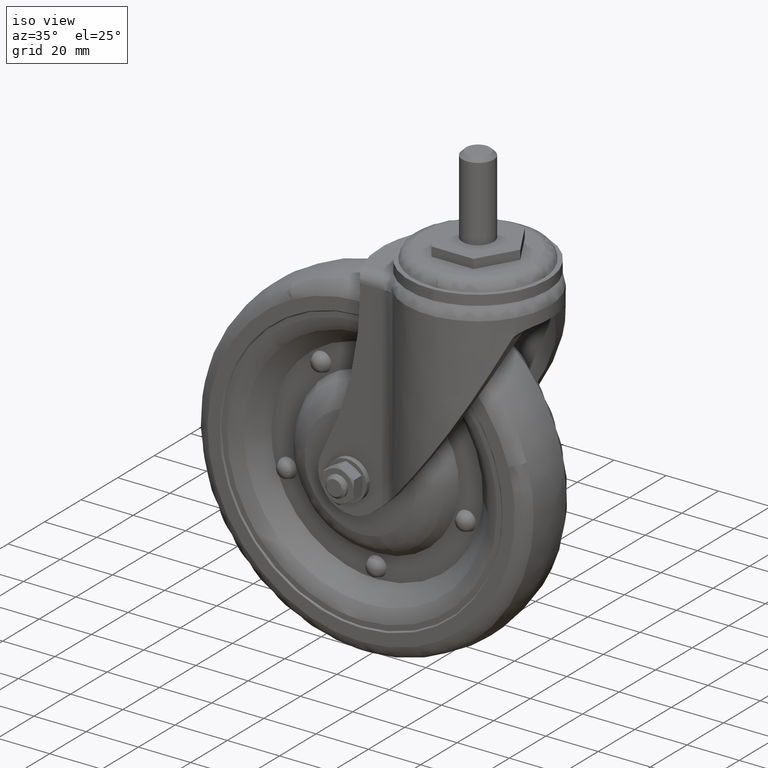
[diagram: clean part render]
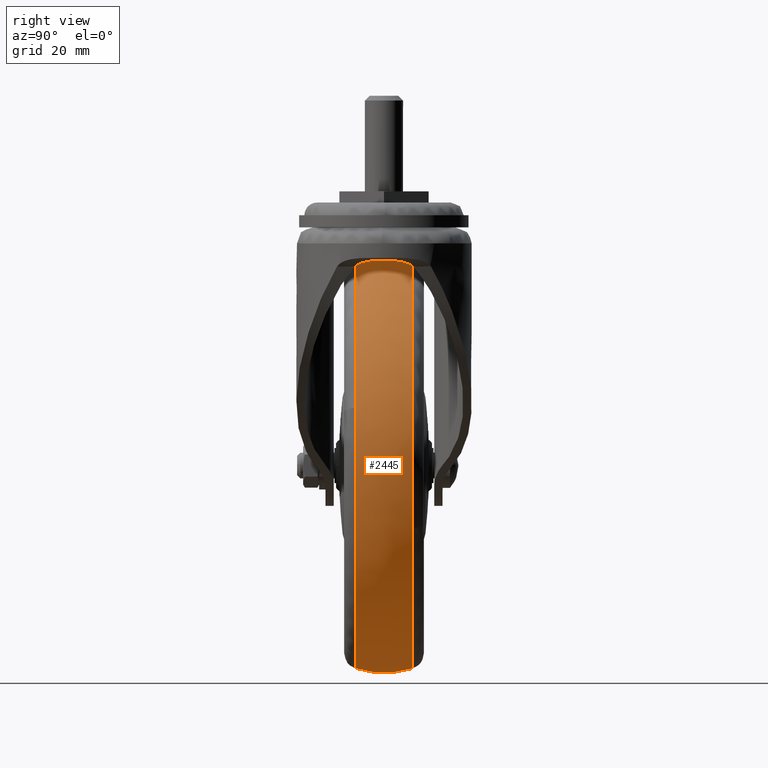
[diagram: tour spotlight — one face highlighted and labeled with its STEP entity id]
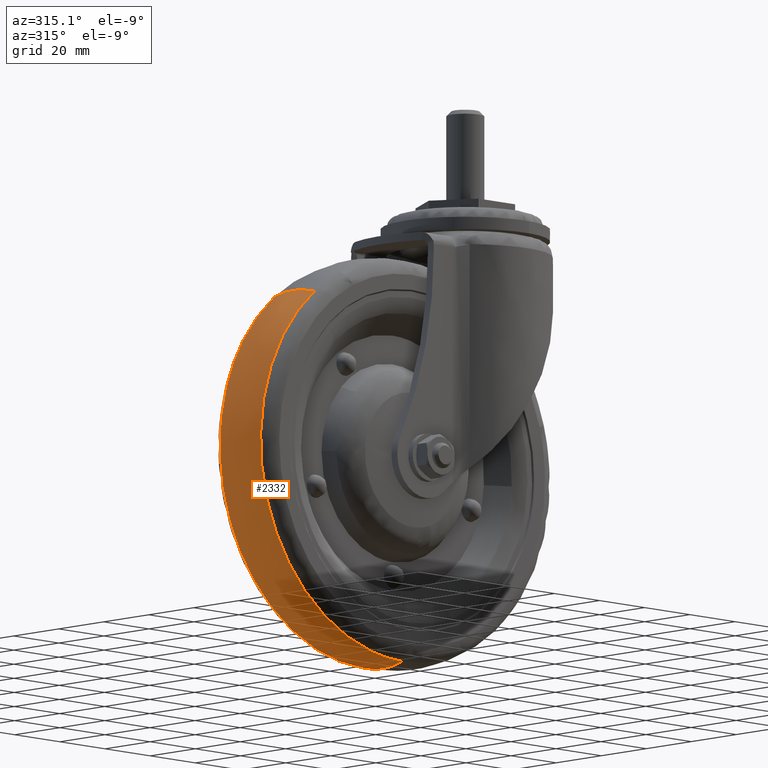
[diagram: tour spotlight — one face highlighted and labeled with its STEP entity id]
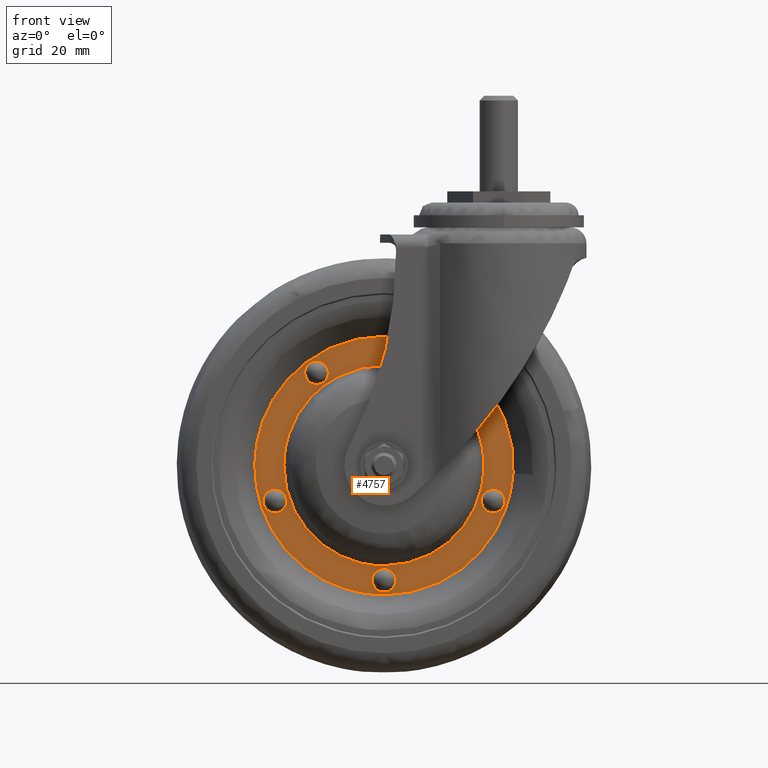
[diagram: tour spotlight — one face highlighted and labeled with its STEP entity id]
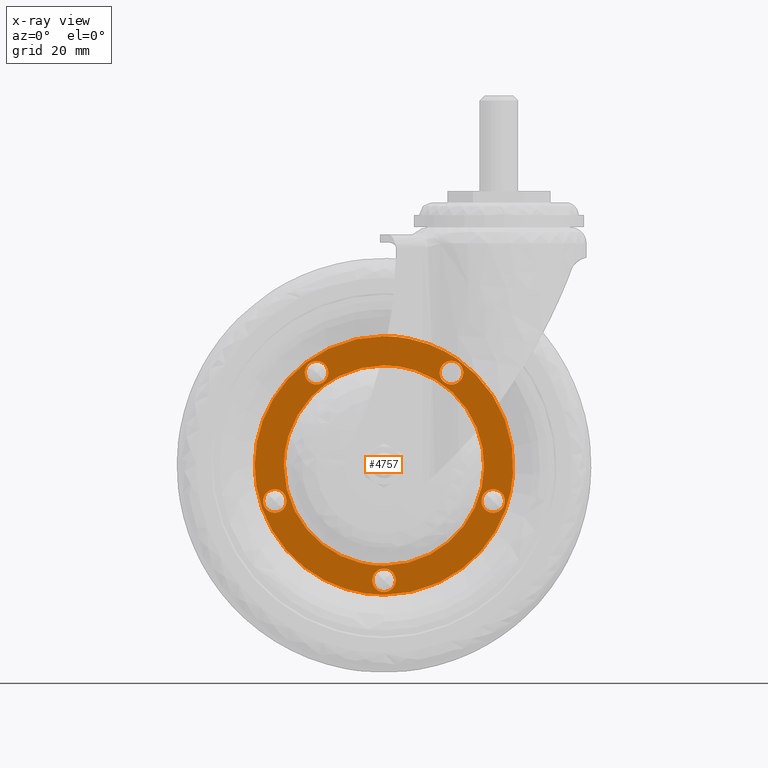
[diagram: x-ray of the same camera — body ghosted, this tour face saturated]
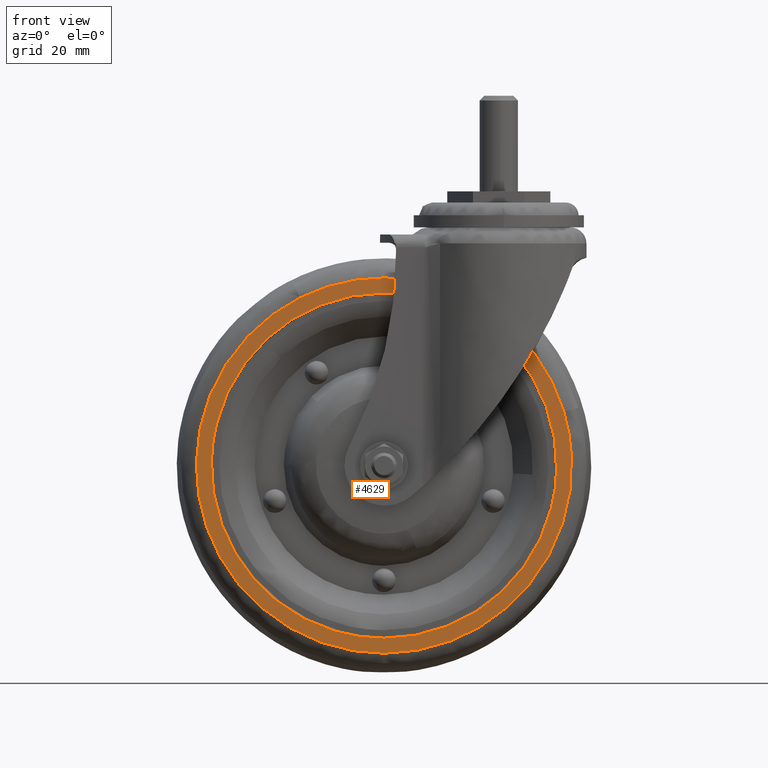
[diagram: tour spotlight — one face highlighted and labeled with its STEP entity id]
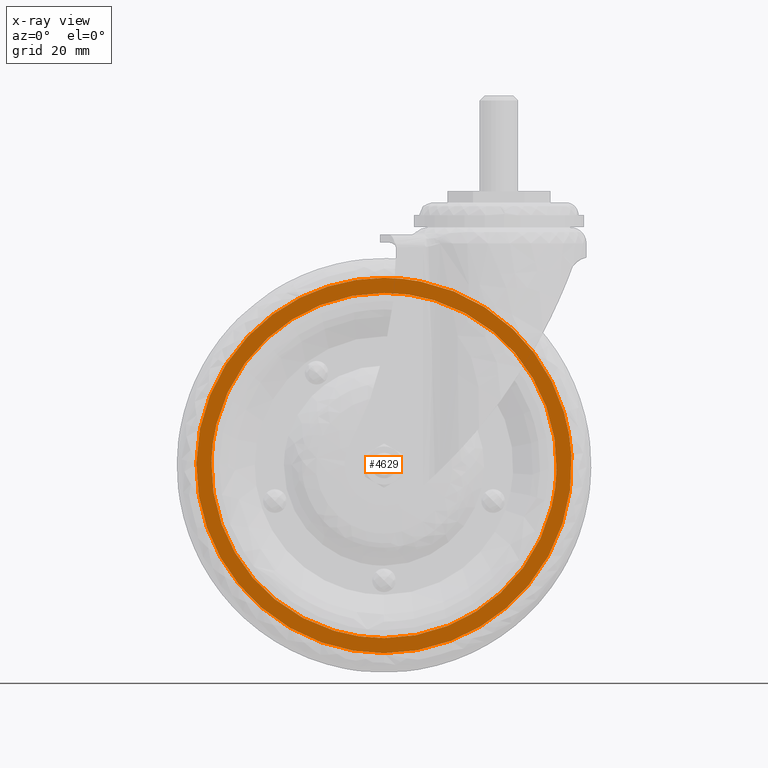
[diagram: x-ray of the same camera — body ghosted, this tour face saturated]
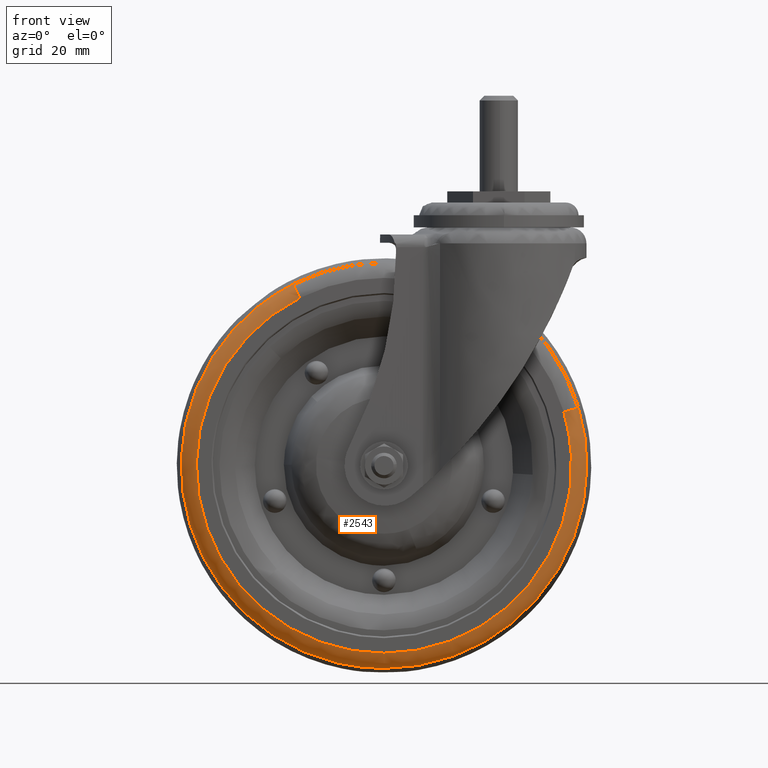
[diagram: tour spotlight — one face highlighted and labeled with its STEP entity id]
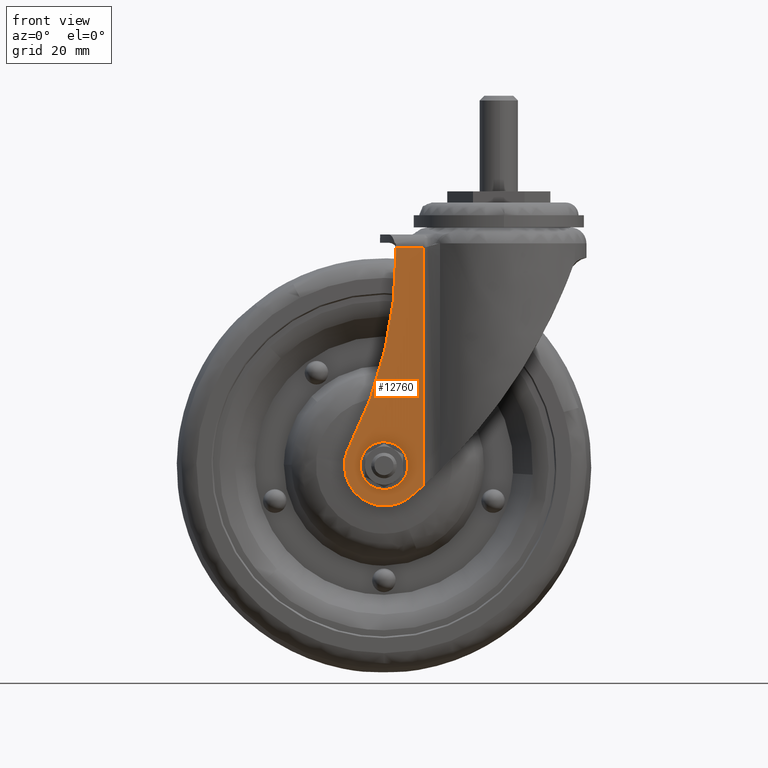
[diagram: tour spotlight — one face highlighted and labeled with its STEP entity id]
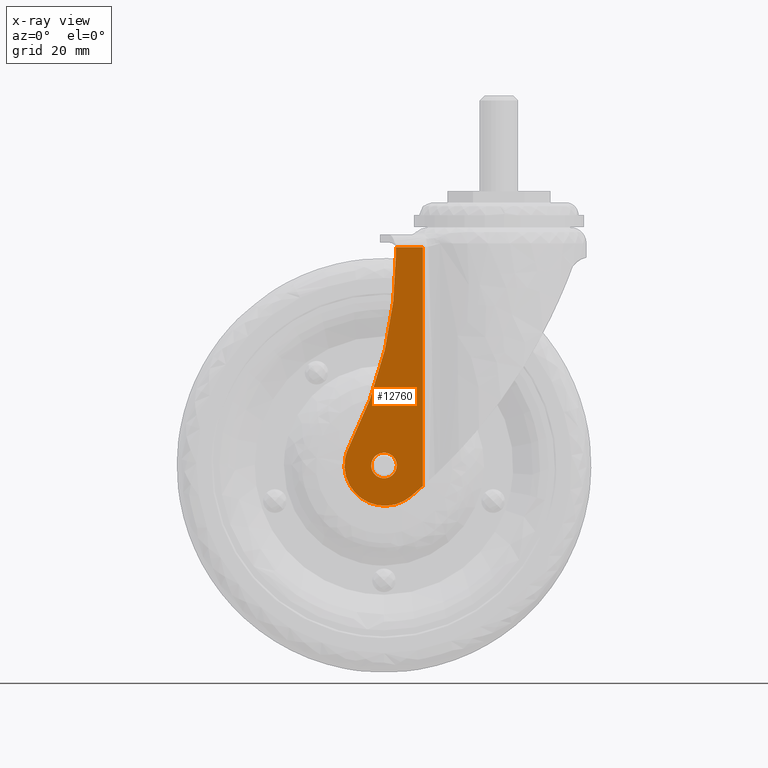
[diagram: x-ray of the same camera — body ghosted, this tour face saturated]
A machine part: a face-by-face anatomy tour. The part has 188 B-rep faces; the first image is the clean iso view, then the 6 largest visible faces are spotlighted one at a time (largest first), each with its STEP entity span.

Face 1 — right view, entity #2445. In plain terms, the highlighted face is a freeform B-spline surface patch.
Definition (entity closure, byte-faithful):
#2094=CARTESIAN_POINT('',(-75.680395793601491,8.999999999989424,-36.273550142216607));
#2095=VERTEX_POINT('',#2094);
#2109=CARTESIAN_POINT('',(-36.0,9.0,-22.382011957491709));
#2110=VERTEX_POINT('',#2109);
#2111=CARTESIAN_POINT('',(-36.0,9.0,-22.382011957491709));
#2112=CARTESIAN_POINT('',(-58.271812164731372,9.0,-22.382011957491706));
#2113=CARTESIAN_POINT('',(-75.680395793601491,8.999999999989424,-36.273550142216607));
#2121=(BOUNDED_CURVE()B_SPLINE_CURVE(2,(#2111,#2112,#2113),.UNSPECIFIED.,.F.,.U.)B_SPLINE_CURVE_WITH_KNOTS((3,3),(0.500000000000000,0.608098577602662),.UNSPECIFIED.)CURVE()GEOMETRIC_REPRESENTATION_ITEM()RATIONAL_B_SPLINE_CURVE((1.0,0.873354638627202,0.856230744649401))REPRESENTATION_ITEM(''));
#2122=EDGE_CURVE('',#2110,#2095,#2121,.T.);
#2124=CARTESIAN_POINT('',(24.504480880001211,9.000000000095877,-105.659285548293100));
#2125=VERTEX_POINT('',#2124);
#2126=CARTESIAN_POINT('',(24.504480880001211,9.000000000095877,-105.659285548293070));
#2127=CARTESIAN_POINT('',(27.618176042508306,9.000000000000002,-96.076317206993053));
#2128=CARTESIAN_POINT('',(27.618176042508299,9.0,-86.000188000000009));
#2129=CARTESIAN_POINT('',(27.618176042508303,9.000000000000002,-22.382011957491709));
#2130=CARTESIAN_POINT('',(-36.0,9.0,-22.382011957491709));
#2138=(BOUNDED_CURVE()B_SPLINE_CURVE(2,(#2126,#2127,#2128,#2129,#2130),.UNSPECIFIED.,.F.,.U.)B_SPLINE_CURVE_WITH_KNOTS((3,2,3),(0.197450174525956,0.250000000000000,0.500000000000000),.UNSPECIFIED.)CURVE()GEOMETRIC_REPRESENTATION_ITEM()RATIONAL_B_SPLINE_CURVE((0.902750339224154,0.938434049875288,1.0,0.707106781186548,1.0))REPRESENTATION_ITEM(''));
#2139=EDGE_CURVE('',#2125,#2110,#2138,.T.);
#2196=CARTESIAN_POINT('',(-36.0,9.0,-149.618364042508290));
#2197=VERTEX_POINT('',#2196);
#2198=CARTESIAN_POINT('',(-36.0,9.0,-149.618364042508290));
#2199=CARTESIAN_POINT('',(10.221310448965543,9.0,-149.618364042508380));
#2200=CARTESIAN_POINT('',(24.504480880001211,9.000000000095877,-105.659285548293070));
#2208=(BOUNDED_CURVE()B_SPLINE_CURVE(2,(#2198,#2199,#2200),.UNSPECIFIED.,.F.,.U.)B_SPLINE_CURVE_WITH_KNOTS((3,3),(0.0,0.197450174525956),.UNSPECIFIED.)CURVE()GEOMETRIC_REPRESENTATION_ITEM()RATIONAL_B_SPLINE_CURVE((1.0,0.768672731311260,0.902750339224154))REPRESENTATION_ITEM(''));
#2209=EDGE_CURVE('',#2197,#2125,#2208,.T.);
#2211=CARTESIAN_POINT('',(-36.799418031486482,9.000019924537934,-149.613334884306990));
#2212=VERTEX_POINT('',#2211);
#2213=CARTESIAN_POINT('',(-36.799418031486475,9.000019924537934,-149.613334884306990));
#2214=CARTESIAN_POINT('',(-36.399724795627868,9.000009962268965,-149.618360909759020));
#2215=CARTESIAN_POINT('',(-36.0,9.0,-149.618364042508290));
#2223=(BOUNDED_CURVE()B_SPLINE_CURVE(2,(#2213,#2214,#2215),.UNSPECIFIED.,.F.,.U.)B_SPLINE_CURVE_WITH_KNOTS((3,3),(0.997784324749205,1.0),.UNSPECIFIED.)CURVE()GEOMETRIC_REPRESENTATION_ITEM()RATIONAL_B_SPLINE_CURVE((0.994854361993686,0.997404174975797,1.0))REPRESENTATION_ITEM(''));
#2224=EDGE_CURVE('',#2212,#2197,#2223,.T.);
#2283=CARTESIAN_POINT('',(-75.680395793609506,-8.999999999958416,-36.273550142210539));
#2284=VERTEX_POINT('',#2283);
#2285=CARTESIAN_POINT('',(-36.799418329474904,-9.000026311397241,-149.613332871817990));
#2286=VERTEX_POINT('',#2285);
#2302=CARTESIAN_POINT('',(-75.680395793601505,8.999999999989424,-36.273550142216607));
#2303=CARTESIAN_POINT('',(-77.445774361403835,3.406374E-011,-34.061214832365856));
#2304=CARTESIAN_POINT('',(-75.680395793609506,-8.999999999958416,-36.273550142210546));
#2312=(BOUNDED_CURVE()B_SPLINE_CURVE(2,(#2302,#2303,#2304),.UNSPECIFIED.,.F.,.U.)B_SPLINE_CURVE_WITH_KNOTS((3,3),(-1.494101281925805,-0.505898718077761),.UNSPECIFIED.)CURVE()GEOMETRIC_REPRESENTATION_ITEM()RATIONAL_B_SPLINE_CURVE((0.798711031347099,0.761921763406467,0.798711031346834))REPRESENTATION_ITEM(''));
#2313=EDGE_CURVE('',#2095,#2284,#2312,.T.);
#2317=CARTESIAN_POINT('',(-36.799418031486475,9.000019924537934,-149.613334884307050));
#2318=CARTESIAN_POINT('',(-36.834984902715213,-0.000003509265218,-152.443494721556190));
#2319=CARTESIAN_POINT('',(-36.799418329474904,-9.000026311397241,-149.613332871817990));
#2327=(BOUNDED_CURVE()B_SPLINE_CURVE(2,(#2317,#2318,#2319),.UNSPECIFIED.,.F.,.U.)B_SPLINE_CURVE_WITH_KNOTS((3,3),(-1.494102428604183,-0.505897203825527),.UNSPECIFIED.)CURVE()GEOMETRIC_REPRESENTATION_ITEM()RATIONAL_B_SPLINE_CURVE((0.933442071422004,0.890446773224374,0.933442103406858))REPRESENTATION_ITEM(''));
#2328=EDGE_CURVE('',#2212,#2286,#2327,.T.);
#2333=CARTESIAN_POINT('',(-36.795886817225096,9.851524995517034,-149.331514713522240));
#2334=CARTESIAN_POINT('',(26.535439896297124,9.851524995517035,-150.127401530747330));
#2335=CARTESIAN_POINT('',(27.331326713522234,9.851524995517034,-86.796074817225090));
#2336=CARTESIAN_POINT('',(28.127213530747323,9.851524995517035,-23.464748103702874));
#2337=CARTESIAN_POINT('',(-35.204113182774897,9.851524995517034,-22.668861286477778));
#2338=CARTESIAN_POINT('',(-57.823185974327963,9.851524995517035,-22.384606672105274));
#2339=CARTESIAN_POINT('',(-75.504599141389861,9.851524995517035,-36.493854811216707));
#2340=CARTESIAN_POINT('',(-36.838925802636851,-0.000005147586262,-152.756268067315030));
#2341=CARTESIAN_POINT('',(29.917154264678206,-0.000005147586262,-153.595193869951940));
#2342=CARTESIAN_POINT('',(30.756080067315068,-0.000005147586262,-86.839113802636888));
#2343=CARTESIAN_POINT('',(31.595005869951923,-0.000005147586262,-20.083033735321806));
#2344=CARTESIAN_POINT('',(-35.161074197363128,-0.000005147586262,-19.244107932684937));
#2345=CARTESIAN_POINT('',(-59.003313302057975,-0.000005147586262,-18.944481747962946));
#2346=CARTESIAN_POINT('',(-77.640880116707393,-0.000005147586263,-33.816712401280888));
#2347=CARTESIAN_POINT('',(-36.795886777098090,-9.851534180496639,-149.331511520484670));
#2348=CARTESIAN_POINT('',(26.535436743386516,-9.851534180496641,-150.127398297582740));
#2349=CARTESIAN_POINT('',(27.331323520484613,-9.851534180496639,-86.796074777098113));
#2350=CARTESIAN_POINT('',(28.127210297582714,-9.851534180496641,-23.464751256613486));
#2351=CARTESIAN_POINT('',(-35.204113222901903,-9.851534180496639,-22.668864479515396));
#2352=CARTESIAN_POINT('',(-57.823184874047001,-9.851534180496641,-22.384609879474418));
#2353=CARTESIAN_POINT('',(-75.504597149647751,-9.851534180496641,-36.493857307226051));
#2361=(BOUNDED_SURFACE()B_SPLINE_SURFACE(2,2,((#2333,#2340,#2347),(#2334,#2341,#2348),(#2335,#2342,#2349),(#2336,#2343,#2350),(#2337,#2344,#2351),(#2338,#2345,#2352),(#2339,#2346,#2353)),.UNSPECIFIED.,.F.,.F.,.U.)B_SPLINE_SURFACE_WITH_KNOTS((3,2,2,3),(3,3),(0.0,107.695526217004000,215.391052434007890,262.777083969489580),(0.0,20.264964112582859),.UNSPECIFIED.)GEOMETRIC_REPRESENTATION_ITEM()RATIONAL_B_SPLINE_SURFACE(((0.937951842005578,0.885936992961819,0.937951893348408),(0.663232107908557,0.626452055427321,0.663232144213421),(0.937951842005578,0.885936992961819,0.937951893348408),(0.663232107908557,0.626452055427321,0.663232144213421),(0.937951842005578,0.885936992961819,0.937951893348408),(0.817075159002889,0.771763620446640,0.817075203729014),(0.802569957042566,0.758062815744818,0.802570000974686)))REPRESENTATION_ITEM('')SURFACE());
#2362=CARTESIAN_POINT('',(-64.497286982124081,-9.000000000324461,-29.121572003994540));
#2363=VERTEX_POINT('',#2362);
#2364=CARTESIAN_POINT('',(-64.497286982124081,-9.000000000324462,-29.121572003994547));
#2365=CARTESIAN_POINT('',(-70.463969943216682,-8.999999999999998,-32.110995598250575));
#2366=CARTESIAN_POINT('',(-75.680395793609506,-8.999999999958416,-36.273550142210539));
#2374=(BOUNDED_CURVE()B_SPLINE_CURVE(2,(#2364,#2365,#2366),.UNSPECIFIED.,.F.,.U.)B_SPLINE_CURVE_WITH_KNOTS((3,3),(0.576154610385096,0.608098577602674),.UNSPECIFIED.)CURVE()GEOMETRIC_REPRESENTATION_ITEM()RATIONAL_B_SPLINE_CURVE((0.875915174757458,0.861290987993897,0.856230744649397))REPRESENTATION_ITEM(''));
#2375=EDGE_CURVE('',#2363,#2284,#2374,.T.);
#2376=ORIENTED_EDGE('',*,*,#2375,.F.);
#2377=CARTESIAN_POINT('',(-36.0,-9.0,-22.382011957491709));
#2378=VERTEX_POINT('',#2377);
#2379=CARTESIAN_POINT('',(-36.0,-9.0,-22.382011957491709));
#2380=CARTESIAN_POINT('',(-51.045590752195899,-9.0,-22.382011957491706));
#2381=CARTESIAN_POINT('',(-64.497286982124081,-9.000000000324461,-29.121572003994544));
#2389=(BOUNDED_CURVE()B_SPLINE_CURVE(2,(#2379,#2380,#2381),.UNSPECIFIED.,.F.,.U.)B_SPLINE_CURVE_WITH_KNOTS((3,3),(0.500000000000000,0.576154610385095),.UNSPECIFIED.)CURVE()GEOMETRIC_REPRESENTATION_ITEM()RATIONAL_B_SPLINE_CURVE((1.0,0.910779324147300,0.875915174757458))REPRESENTATION_ITEM(''));
#2390=EDGE_CURVE('',#2378,#2363,#2389,.T.);
#2391=ORIENTED_EDGE('',*,*,#2390,.F.);
#2392=CARTESIAN_POINT('',(24.979407914213809,-9.000000000245667,-67.867782384702849));
#2393=VERTEX_POINT('',#2392);
#2394=CARTESIAN_POINT('',(24.979407914213805,-9.000000000245667,-67.867782384702849));
#2395=CARTESIAN_POINT('',(11.454080802711379,-9.0,-22.382011957491702));
#2396=CARTESIAN_POINT('',(-36.0,-9.0,-22.382011957491709));
#2404=(BOUNDED_CURVE()B_SPLINE_CURVE(2,(#2394,#2395,#2396),.UNSPECIFIED.,.F.,.U.)B_SPLINE_CURVE_WITH_KNOTS((3,3),(0.298526662064482,0.500000000000000),.UNSPECIFIED.)CURVE()GEOMETRIC_REPRESENTATION_ITEM()RATIONAL_B_SPLINE_CURVE((0.908365862590463,0.763959302187903,1.0))REPRESENTATION_ITEM(''));
#2405=EDGE_CURVE('',#2393,#2378,#2404,.T.);
#2406=ORIENTED_EDGE('',*,*,#2405,.F.);
#2407=CARTESIAN_POINT('',(-36.0,-9.0,-149.618364042508290));
#2408=VERTEX_POINT('',#2407);
#2409=CARTESIAN_POINT('',(-36.0,-9.0,-149.618364042508290));
#2410=CARTESIAN_POINT('',(27.618176042508303,-9.000000000000002,-149.618364042508400));
#2411=CARTESIAN_POINT('',(27.618176042508299,-9.0,-86.000188000000009));
#2412=CARTESIAN_POINT('',(27.618176042508299,-9.0,-76.741978202694284));
#2413=CARTESIAN_POINT('',(24.979407914213805,-9.000000000245667,-67.867782384702849));
#2421=(BOUNDED_CURVE()B_SPLINE_CURVE(2,(#2409,#2410,#2411,#2412,#2413),.UNSPECIFIED.,.F.,.U.)B_SPLINE_CURVE_WITH_KNOTS((3,2,3),(0.0,0.250000000000000,0.298526662064482),.UNSPECIFIED.)CURVE()GEOMETRIC_REPRESENTATION_ITEM()RATIONAL_B_SPLINE_CURVE((1.0,0.707106781186548,1.0,0.943147478998645,0.908365862590463))REPRESENTATION_ITEM(''));
#2422=EDGE_CURVE('',#2408,#2393,#2421,.T.);
#2423=ORIENTED_EDGE('',*,*,#2422,.F.);
#2424=CARTESIAN_POINT('',(-36.799418329474911,-9.000026311397241,-149.613332871817930));
#2425=CARTESIAN_POINT('',(-36.399724944641221,-9.000013155698621,-149.618359905545500));
#2426=CARTESIAN_POINT('',(-36.0,-9.0,-149.618364042508290));
#2434=(BOUNDED_CURVE()B_SPLINE_CURVE(2,(#2424,#2425,#2426),.UNSPECIFIED.,.F.,.U.)B_SPLINE_CURVE_WITH_KNOTS((3,3),(0.997784323855597,1.0),.UNSPECIFIED.)CURVE()GEOMETRIC_REPRESENTATION_ITEM()RATIONAL_B_SPLINE_CURVE((0.994854359936948,0.997404173928871,1.0))REPRESENTATION_ITEM(''));
#2435=EDGE_CURVE('',#2286,#2408,#2434,.T.);
#2436=ORIENTED_EDGE('',*,*,#2435,.F.);
#2437=ORIENTED_EDGE('',*,*,#2328,.F.);
#2438=ORIENTED_EDGE('',*,*,#2224,.T.);
#2439=ORIENTED_EDGE('',*,*,#2209,.T.);
#2440=ORIENTED_EDGE('',*,*,#2139,.T.);
#2441=ORIENTED_EDGE('',*,*,#2122,.T.);
#2442=ORIENTED_EDGE('',*,*,#2313,.T.);
#2443=EDGE_LOOP('',(#2376,#2391,#2406,#2423,#2436,#2437,#2438,#2439,#2440,#2441,#2442));
#2444=FACE_OUTER_BOUND('',#2443,.T.);
#2445=ADVANCED_FACE('',(#2444),#2361,.T.);

Face 2 — auxiliary view, entity #2332. In plain terms, the highlighted face is a freeform B-spline surface patch.
Definition (entity closure, byte-faithful):
#2079=CARTESIAN_POINT('',(-96.504480879918560,9.000000000363295,-66.341090451724710));
#2080=VERTEX_POINT('',#2079);
#2094=CARTESIAN_POINT('',(-75.680395793601491,8.999999999989424,-36.273550142216607));
#2095=VERTEX_POINT('',#2094);
#2096=CARTESIAN_POINT('',(-75.680395793601491,8.999999999989424,-36.273550142216607));
#2097=CARTESIAN_POINT('',(-90.604381707284958,9.0,-48.182452360117644));
#2098=CARTESIAN_POINT('',(-96.504480879918560,9.000000000363295,-66.341090451724725));
#2106=(BOUNDED_CURVE()B_SPLINE_CURVE(2,(#2096,#2097,#2098),.UNSPECIFIED.,.F.,.U.)B_SPLINE_CURVE_WITH_KNOTS((3,3),(0.608098577602661,0.697450174525912),.UNSPECIFIED.)CURVE()GEOMETRIC_REPRESENTATION_ITEM()RATIONAL_B_SPLINE_CURVE((0.856230744649401,0.842076559586161,0.902750339224095))REPRESENTATION_ITEM(''));
#2107=EDGE_CURVE('',#2095,#2080,#2106,.T.);
#2211=CARTESIAN_POINT('',(-36.799418031486482,9.000019924537934,-149.613334884306990));
#2212=VERTEX_POINT('',#2211);
#2226=CARTESIAN_POINT('',(-96.504480879918560,9.000000000363295,-66.341090451724710));
#2227=CARTESIAN_POINT('',(-99.618176037827240,9.000001161947377,-75.924058427787486));
#2228=CARTESIAN_POINT('',(-99.618176031542333,9.000002754258746,-86.000187134053846));
#2229=CARTESIAN_POINT('',(-99.618175992356498,9.000012682170404,-148.823902111578750));
#2230=CARTESIAN_POINT('',(-36.799418031486475,9.000019924537934,-149.613334884306990));
#2238=(BOUNDED_CURVE()B_SPLINE_CURVE(2,(#2226,#2227,#2228,#2229,#2230),.UNSPECIFIED.,.F.,.U.)B_SPLINE_CURVE_WITH_KNOTS((3,2,3),(0.697450174525912,0.750000000000000,0.997784324749205),.UNSPECIFIED.)CURVE()GEOMETRIC_REPRESENTATION_ITEM()RATIONAL_B_SPLINE_CURVE((0.902750339224096,0.938434049875237,1.0,0.709702606210751,0.994854361993686))REPRESENTATION_ITEM(''));
#2239=EDGE_CURVE('',#2080,#2212,#2238,.T.);
#2260=CARTESIAN_POINT('',(-75.504603823317751,9.851524995517034,-36.493858547257965));
#2261=CARTESIAN_POINT('',(-98.954337863881619,9.851524995517034,-55.206060871183894));
#2262=CARTESIAN_POINT('',(-99.331326713522245,9.851524995517034,-85.204301182774898));
#2263=CARTESIAN_POINT('',(-100.127213530747340,9.851524995517035,-148.535627896297110));
#2264=CARTESIAN_POINT('',(-36.795886817225046,9.851524995517034,-149.331514713522240));
#2265=CARTESIAN_POINT('',(-77.640885051818827,-0.000005147586262,-33.816716339355175));
#2266=CARTESIAN_POINT('',(-102.358704879756930,-0.000005147586263,-53.540814055203036));
#2267=CARTESIAN_POINT('',(-102.756080067315050,-0.000005147586262,-85.161262197363129));
#2268=CARTESIAN_POINT('',(-103.595005869951930,-0.000005147586262,-151.917342264678180));
#2269=CARTESIAN_POINT('',(-36.838925802636815,-0.000005147586262,-152.756268067315030));
#2270=CARTESIAN_POINT('',(-75.504601831575400,-9.851534180496635,-36.493861043267124));
#2271=CARTESIAN_POINT('',(-98.954334689851038,-9.851534180496641,-55.206062423761615));
#2272=CARTESIAN_POINT('',(-99.331323520484602,-9.851534180496639,-85.204301222901890));
#2273=CARTESIAN_POINT('',(-100.127210297582710,-9.851534180496641,-148.535624743386510));
#2274=CARTESIAN_POINT('',(-36.795886777098040,-9.851534180496639,-149.331511520484670));
#2282=(BOUNDED_SURFACE()B_SPLINE_SURFACE(2,2,((#2260,#2265,#2270),(#2261,#2266,#2271),(#2262,#2267,#2272),(#2263,#2268,#2273),(#2264,#2269,#2274)),.UNSPECIFIED.,.F.,.F.,.U.)B_SPLINE_SURFACE_WITH_KNOTS((3,2,3),(3,3),(0.0,60.309488519134803,168.005014736138800),(0.0,20.264964112582849),.UNSPECIFIED.)GEOMETRIC_REPRESENTATION_ITEM()RATIONAL_B_SPLINE_SURFACE(((0.802569953269866,0.758062812181337,0.802569997201987),(0.784108806630835,0.740625442790347,0.784108849552405),(0.937951842005578,0.885936992961819,0.937951893348408),(0.663232107908557,0.626452055427321,0.663232144213421),(0.937951842005578,0.885936992961819,0.937951893348408)))REPRESENTATION_ITEM('')SURFACE());
#2283=CARTESIAN_POINT('',(-75.680395793609506,-8.999999999958416,-36.273550142210539));
#2284=VERTEX_POINT('',#2283);
#2285=CARTESIAN_POINT('',(-36.799418329474904,-9.000026311397241,-149.613332871817990));
#2286=VERTEX_POINT('',#2285);
#2287=CARTESIAN_POINT('',(-75.680395793609506,-8.999999999958416,-36.273550142210539));
#2288=CARTESIAN_POINT('',(-99.618176033575196,-9.000002261817190,-55.375194658066974));
#2289=CARTESIAN_POINT('',(-99.618176008436762,-9.000008622737870,-86.000185288462561));
#2290=CARTESIAN_POINT('',(-99.618175956868086,-9.000021671449114,-148.823898965477440));
#2291=CARTESIAN_POINT('',(-36.799418329474911,-9.000026311397241,-149.613332871817930));
#2299=(BOUNDED_CURVE()B_SPLINE_CURVE(2,(#2287,#2288,#2289,#2290,#2291),.UNSPECIFIED.,.F.,.U.)B_SPLINE_CURVE_WITH_KNOTS((3,2,3),(0.608098577602673,0.750000000000000,0.997784323855597),.UNSPECIFIED.)CURVE()GEOMETRIC_REPRESENTATION_ITEM()RATIONAL_B_SPLINE_CURVE((0.856230744649397,0.833752142559358,1.0,0.709702607257677,0.994854359936948))REPRESENTATION_ITEM(''));
#2300=EDGE_CURVE('',#2284,#2286,#2299,.T.);
#2301=ORIENTED_EDGE('',*,*,#2300,.F.);
#2302=CARTESIAN_POINT('',(-75.680395793601505,8.999999999989424,-36.273550142216607));
#2303=CARTESIAN_POINT('',(-77.445774361403835,3.406374E-011,-34.061214832365856));
#2304=CARTESIAN_POINT('',(-75.680395793609506,-8.999999999958416,-36.273550142210546));
#2312=(BOUNDED_CURVE()B_SPLINE_CURVE(2,(#2302,#2303,#2304),.UNSPECIFIED.,.F.,.U.)B_SPLINE_CURVE_WITH_KNOTS((3,3),(-1.494101281925805,-0.505898718077761),.UNSPECIFIED.)CURVE()GEOMETRIC_REPRESENTATION_ITEM()RATIONAL_B_SPLINE_CURVE((0.798711031347099,0.761921763406467,0.798711031346834))REPRESENTATION_ITEM(''));
#2313=EDGE_CURVE('',#2095,#2284,#2312,.T.);
#2314=ORIENTED_EDGE('',*,*,#2313,.F.);
#2315=ORIENTED_EDGE('',*,*,#2107,.T.);
#2316=ORIENTED_EDGE('',*,*,#2239,.T.);
#2317=CARTESIAN_POINT('',(-36.799418031486475,9.000019924537934,-149.613334884307050));
#2318=CARTESIAN_POINT('',(-36.834984902715213,-0.000003509265218,-152.443494721556190));
#2319=CARTESIAN_POINT('',(-36.799418329474904,-9.000026311397241,-149.613332871817990));
#2327=(BOUNDED_CURVE()B_SPLINE_CURVE(2,(#2317,#2318,#2319),.UNSPECIFIED.,.F.,.U.)B_SPLINE_CURVE_WITH_KNOTS((3,3),(-1.494102428604183,-0.505897203825527),.UNSPECIFIED.)CURVE()GEOMETRIC_REPRESENTATION_ITEM()RATIONAL_B_SPLINE_CURVE((0.933442071422004,0.890446773224374,0.933442103406858))REPRESENTATION_ITEM(''));
#2328=EDGE_CURVE('',#2212,#2286,#2327,.T.);
#2329=ORIENTED_EDGE('',*,*,#2328,.T.);
#2330=EDGE_LOOP('',(#2301,#2314,#2315,#2316,#2329));
#2331=FACE_OUTER_BOUND('',#2330,.T.);
#2332=ADVANCED_FACE('',(#2331),#2282,.T.);

Face 3 — front view, entity #4757. An x-ray twin of the same camera follows (body ghosted, this face saturated) — the face is partly hidden behind the body. In plain terms, the highlighted face is a freeform B-spline surface patch.
Definition (entity closure, byte-faithful):
#149=CARTESIAN_POINT('',(4.457931786553604,-3.774815623264916,-88.474701113976096));
#150=VERTEX_POINT('',#149);
#156=CARTESIAN_POINT('',(-36.0,-3.774815623259470,-126.533722999999990));
#157=VERTEX_POINT('',#156);
#158=CARTESIAN_POINT('',(-36.0,-3.774815623259470,-126.533722999999990));
#159=CARTESIAN_POINT('',(2.130142287557343,-3.774815623259470,-126.533723000000020));
#160=CARTESIAN_POINT('',(4.457931786553605,-3.774815623264915,-88.474701113976096));
#168=(BOUNDED_CURVE()B_SPLINE_CURVE(2,(#158,#159,#160),.UNSPECIFIED.,.F.,.U.)B_SPLINE_CURVE_WITH_KNOTS((3,3),(0.0,0.239332962241621),.UNSPECIFIED.)CURVE()GEOMETRIC_REPRESENTATION_ITEM()RATIONAL_B_SPLINE_CURVE((1.0,0.719603993283573,0.976072041672456))REPRESENTATION_ITEM(''));
#169=EDGE_CURVE('',#157,#150,#168,.T.);
#171=CARTESIAN_POINT('',(-36.0,-3.774815623259470,-45.466653000000001));
#172=VERTEX_POINT('',#171);
#173=CARTESIAN_POINT('',(-36.0,-3.774815623259470,-45.466653000000001));
#174=CARTESIAN_POINT('',(-76.533535000000001,-3.774815623259471,-45.466653000000001));
#175=CARTESIAN_POINT('',(-76.533535000000001,-3.774815623259470,-86.000188000000009));
#176=CARTESIAN_POINT('',(-76.533535000000001,-3.774815623259471,-126.533723000000020));
#177=CARTESIAN_POINT('',(-36.0,-3.774815623259470,-126.533722999999990));
#185=(BOUNDED_CURVE()B_SPLINE_CURVE(2,(#173,#174,#175,#176,#177),.UNSPECIFIED.,.F.,.U.)B_SPLINE_CURVE_WITH_KNOTS((3,2,3),(0.500000000000000,0.750000000000000,1.0),.UNSPECIFIED.)CURVE()GEOMETRIC_REPRESENTATION_ITEM()RATIONAL_B_SPLINE_CURVE((1.0,0.707106781186547,1.0,0.707106781186547,1.0))REPRESENTATION_ITEM(''));
#186=EDGE_CURVE('',#172,#157,#185,.T.);
#188=CARTESIAN_POINT('',(-21.747680528267320,-3.774815623269495,-48.054979484659043));
#189=VERTEX_POINT('',#188);
#190=CARTESIAN_POINT('',(-21.747680528267324,-3.774815623269495,-48.054979484659036));
#191=CARTESIAN_POINT('',(-28.638810660494894,-3.774815623259470,-45.466653000000001));
#192=CARTESIAN_POINT('',(-36.0,-3.774815623259470,-45.466653000000001));
#200=(BOUNDED_CURVE()B_SPLINE_CURVE(2,(#190,#191,#192),.UNSPECIFIED.,.F.,.U.)B_SPLINE_CURVE_WITH_KNOTS((3,3),(0.440284170898083,0.500000000000000),.UNSPECIFIED.)CURVE()GEOMETRIC_REPRESENTATION_ITEM()RATIONAL_B_SPLINE_CURVE((0.893499554634754,0.930038554400902,1.0))REPRESENTATION_ITEM(''));
#201=EDGE_CURVE('',#189,#172,#200,.T.);
#241=CARTESIAN_POINT('',(4.457931786553605,-3.774815623264915,-88.474701113976096));
#242=CARTESIAN_POINT('',(4.533535000000005,-3.774815623259470,-87.238599500550961));
#243=CARTESIAN_POINT('',(4.533535000000005,-3.774815623259470,-86.000188000000009));
#244=CARTESIAN_POINT('',(4.533535000000007,-3.774815623259470,-57.926272711741319));
#245=CARTESIAN_POINT('',(-21.747680528267324,-3.774815623269495,-48.054979484659036));
#253=(BOUNDED_CURVE()B_SPLINE_CURVE(2,(#241,#242,#243,#244,#245),.UNSPECIFIED.,.F.,.U.)B_SPLINE_CURVE_WITH_KNOTS((3,2,3),(0.239332962241621,0.250000000000000,0.440284170898083),.UNSPECIFIED.)CURVE()GEOMETRIC_REPRESENTATION_ITEM()RATIONAL_B_SPLINE_CURVE((0.976072041672456,0.987502787902974,1.0,0.777068226785646,0.893499554634754))REPRESENTATION_ITEM(''));
#254=EDGE_CURVE('',#150,#189,#253,.T.);
#367=CARTESIAN_POINT('',(-67.414124800930182,-3.774815623093002,-85.726041085628012));
#368=VERTEX_POINT('',#367);
#374=CARTESIAN_POINT('',(-36.0,-3.774815623259470,-117.415509000000000));
#375=VERTEX_POINT('',#374);
#376=CARTESIAN_POINT('',(-67.414124800930182,-3.774815623093002,-85.726041085628012));
#377=CARTESIAN_POINT('',(-67.415320999999949,-3.774815623259470,-85.863111932860193));
#378=CARTESIAN_POINT('',(-67.415320999999949,-3.774815623259470,-86.000188000000009));
#379=CARTESIAN_POINT('',(-67.415320999999949,-3.774815623259471,-117.415508999999970));
#380=CARTESIAN_POINT('',(-36.0,-3.774815623259470,-117.415509000000000));
#388=(BOUNDED_CURVE()B_SPLINE_CURVE(2,(#376,#377,#378,#379,#380),.UNSPECIFIED.,.F.,.U.)B_SPLINE_CURVE_WITH_KNOTS((3,2,3),(0.748460105659722,0.750000000000000,1.0),.UNSPECIFIED.)CURVE()GEOMETRIC_REPRESENTATION_ITEM()RATIONAL_B_SPLINE_CURVE((0.996414028088160,0.998195901560173,1.0,0.707106781186548,1.0))REPRESENTATION_ITEM(''));
#389=EDGE_CURVE('',#368,#375,#388,.T.);
#391=CARTESIAN_POINT('',(-36.0,-3.774815623259470,-54.584867000000052));
#392=VERTEX_POINT('',#391);
#393=CARTESIAN_POINT('',(-36.0,-3.774815623259470,-117.415509000000000));
#394=CARTESIAN_POINT('',(-4.584679000000043,-3.774815623259471,-117.415508999999970));
#395=CARTESIAN_POINT('',(-4.584679000000043,-3.774815623259470,-86.000188000000009));
#396=CARTESIAN_POINT('',(-4.584679000000043,-3.774815623259471,-54.584867000000052));
#397=CARTESIAN_POINT('',(-36.0,-3.774815623259470,-54.584867000000052));
#405=(BOUNDED_CURVE()B_SPLINE_CURVE(2,(#393,#394,#395,#396,#397),.UNSPECIFIED.,.F.,.U.)B_SPLINE_CURVE_WITH_KNOTS((3,2,3),(0.0,0.250000000000000,0.500000000000000),.UNSPECIFIED.)CURVE()GEOMETRIC_REPRESENTATION_ITEM()RATIONAL_B_SPLINE_CURVE((1.0,0.707106781186548,1.0,0.707106781186548,1.0))REPRESENTATION_ITEM(''));
#406=EDGE_CURVE('',#375,#392,#405,.T.);
#408=CARTESIAN_POINT('',(-58.749502145447927,-3.774815623259407,-64.334949813741815));
#409=VERTEX_POINT('',#408);
#410=CARTESIAN_POINT('',(-36.0,-3.774815623259470,-54.584867000000052));
#411=CARTESIAN_POINT('',(-49.464118001874404,-3.774815623259469,-54.584867000000045));
#412=CARTESIAN_POINT('',(-58.749502145447927,-3.774815623259408,-64.334949813741815));
#420=(BOUNDED_CURVE()B_SPLINE_CURVE(2,(#410,#411,#412),.UNSPECIFIED.,.F.,.U.)B_SPLINE_CURVE_WITH_KNOTS((3,3),(0.500000000000000,0.628682976150438),.UNSPECIFIED.)CURVE()GEOMETRIC_REPRESENTATION_ITEM()RATIONAL_B_SPLINE_CURVE((1.0,0.849238515635214,0.853680523245775))REPRESENTATION_ITEM(''));
#421=EDGE_CURVE('',#392,#409,#420,.T.);
#459=CARTESIAN_POINT('',(-58.749502145447927,-3.774815623259408,-64.334949813741815));
#460=CARTESIAN_POINT('',(-67.305854693973941,-3.774815623259471,-73.319515733875420));
#461=CARTESIAN_POINT('',(-67.414124800930182,-3.774815623093002,-85.726041085628012));
#469=(BOUNDED_CURVE()B_SPLINE_CURVE(2,(#459,#460,#461),.UNSPECIFIED.,.F.,.U.)B_SPLINE_CURVE_WITH_KNOTS((3,3),(0.628682976150438,0.748460105659722),.UNSPECIFIED.)CURVE()GEOMETRIC_REPRESENTATION_ITEM()RATIONAL_B_SPLINE_CURVE((0.853680523245775,0.857815109939118,0.996414028088162))REPRESENTATION_ITEM(''));
#470=EDGE_CURVE('',#409,#368,#469,.T.);
#3891=CARTESIAN_POINT('',(-70.238034586625503,-3.774815623259470,-93.424795797498120));
#3892=VERTEX_POINT('',#3891);
#3893=CARTESIAN_POINT('',(-70.238034586625503,-3.774815623259470,-100.824795797498100));
#3894=VERTEX_POINT('',#3893);
#3895=CARTESIAN_POINT('',(-70.238034586625503,-3.774815623259470,-93.424795797498120));
#3896=CARTESIAN_POINT('',(-73.938034586625491,-3.774815623259471,-93.424795797498106));
#3897=CARTESIAN_POINT('',(-73.938034586625491,-3.774815623259470,-97.124795797498109));
#3898=CARTESIAN_POINT('',(-73.938034586625491,-3.774815623259471,-100.824795797498130));
#3899=CARTESIAN_POINT('',(-70.238034586625503,-3.774815623259470,-100.824795797498100));
#3907=(BOUNDED_CURVE()B_SPLINE_CURVE(2,(#3895,#3896,#3897,#3898,#3899),.UNSPECIFIED.,.F.,.U.)B_SPLINE_CURVE_WITH_KNOTS((3,2,3),(0.0,0.250000000000000,0.500000000000000),.UNSPECIFIED.)CURVE()GEOMETRIC_REPRESENTATION_ITEM()RATIONAL_B_SPLINE_CURVE((1.0,0.707106781186548,1.0,0.707106781186548,1.0))REPRESENTATION_ITEM(''));
#3908=EDGE_CURVE('',#3892,#3894,#3907,.T.);
#3910=CARTESIAN_POINT('',(-70.238034586625503,-3.774815623259470,-100.824795797498100));
#3911=CARTESIAN_POINT('',(-66.538034586625528,-3.774815623259471,-100.824795797498130));
#3912=CARTESIAN_POINT('',(-66.538034586625514,-3.774815623259470,-97.124795797498109));
#3913=CARTESIAN_POINT('',(-66.538034586625528,-3.774815623259471,-93.424795797498106));
#3914=CARTESIAN_POINT('',(-70.238034586625503,-3.774815623259470,-93.424795797498120));
#3922=(BOUNDED_CURVE()B_SPLINE_CURVE(2,(#3910,#3911,#3912,#3913,#3914),.UNSPECIFIED.,.F.,.U.)B_SPLINE_CURVE_WITH_KNOTS((3,2,3),(0.500000000000000,0.750000000000000,1.0),.UNSPECIFIED.)CURVE()GEOMETRIC_REPRESENTATION_ITEM()RATIONAL_B_SPLINE_CURVE((1.0,0.707106781186548,1.0,0.707106781186548,1.0))REPRESENTATION_ITEM(''));
#3923=EDGE_CURVE('',#3894,#3892,#3922,.T.);
#4053=CARTESIAN_POINT('',(-57.160269082528899,-3.774815623259470,-53.175572202501897));
#4054=VERTEX_POINT('',#4053);
#4055=CARTESIAN_POINT('',(-57.160269082528899,-3.774815623259470,-60.575572202501903));
#4056=VERTEX_POINT('',#4055);
#4057=CARTESIAN_POINT('',(-57.160269082528899,-3.774815623259470,-53.175572202501897));
#4058=CARTESIAN_POINT('',(-60.860269082528902,-3.774815623259471,-53.175572202501904));
#4059=CARTESIAN_POINT('',(-60.860269082528902,-3.774815623259470,-56.875572202501907));
#4060=CARTESIAN_POINT('',(-60.860269082528902,-3.774815623259471,-60.575572202501910));
#4061=CARTESIAN_POINT('',(-57.160269082528899,-3.774815623259470,-60.575572202501903));
#4069=(BOUNDED_CURVE()B_SPLINE_CURVE(2,(#4057,#4058,#4059,#4060,#4061),.UNSPECIFIED.,.F.,.U.)B_SPLINE_CURVE_WITH_KNOTS((3,2,3),(0.0,0.250000000000000,0.500000000000000),.UNSPECIFIED.)CURVE()GEOMETRIC_REPRESENTATION_ITEM()RATIONAL_B_SPLINE_CURVE((1.0,0.707106781186548,1.0,0.707106781186548,1.0))REPRESENTATION_ITEM(''));
#4070=EDGE_CURVE('',#4054,#4056,#4069,.T.);
#4072=CARTESIAN_POINT('',(-57.160269082528899,-3.774815623259470,-60.575572202501903));
#4073=CARTESIAN_POINT('',(-53.460269082528896,-3.774815623259471,-60.575572202501910));
#4074=CARTESIAN_POINT('',(-53.460269082528903,-3.774815623259470,-56.875572202501907));
#4075=CARTESIAN_POINT('',(-53.460269082528896,-3.774815623259471,-53.175572202501904));
#4076=CARTESIAN_POINT('',(-57.160269082528899,-3.774815623259470,-53.175572202501897));
#4084=(BOUNDED_CURVE()B_SPLINE_CURVE(2,(#4072,#4073,#4074,#4075,#4076),.UNSPECIFIED.,.F.,.U.)B_SPLINE_CURVE_WITH_KNOTS((3,2,3),(0.500000000000000,0.750000000000000,1.0),.UNSPECIFIED.)CURVE()GEOMETRIC_REPRESENTATION_ITEM()RATIONAL_B_SPLINE_CURVE((1.0,0.707106781186548,1.0,0.707106781186548,1.0))REPRESENTATION_ITEM(''));
#4085=EDGE_CURVE('',#4056,#4054,#4084,.T.);
#4215=CARTESIAN_POINT('',(-14.839730917470879,-3.774815623259470,-53.175572202501897));
#4216=VERTEX_POINT('',#4215);
#4217=CARTESIAN_POINT('',(-14.839730917470879,-3.774815623259470,-60.575572202501903));
#4218=VERTEX_POINT('',#4217);
#4219=CARTESIAN_POINT('',(-14.839730917470879,-3.774815623259470,-53.175572202501897));
#4220=CARTESIAN_POINT('',(-18.539730917470877,-3.774815623259471,-53.175572202501904));
#4221=CARTESIAN_POINT('',(-18.539730917470880,-3.774815623259470,-56.875572202501907));
#4222=CARTESIAN_POINT('',(-18.539730917470877,-3.774815623259471,-60.575572202501910));
#4223=CARTESIAN_POINT('',(-14.839730917470879,-3.774815623259470,-60.575572202501903));
#4231=(BOUNDED_CURVE()B_SPLINE_CURVE(2,(#4219,#4220,#4221,#4222,#4223),.UNSPECIFIED.,.F.,.U.)B_SPLINE_CURVE_WITH_KNOTS((3,2,3),(0.0,0.250000000000000,0.500000000000000),.UNSPECIFIED.)CURVE()GEOMETRIC_REPRESENTATION_ITEM()RATIONAL_B_SPLINE_CURVE((1.0,0.707106781186548,1.0,0.707106781186548,1.0))REPRESENTATION_ITEM(''));
#4232=EDGE_CURVE('',#4216,#4218,#4231,.T.);
#4234=CARTESIAN_POINT('',(-14.839730917470879,-3.774815623259470,-60.575572202501903));
#4235=CARTESIAN_POINT('',(-11.139730917470880,-3.774815623259471,-60.575572202501910));
#4236=CARTESIAN_POINT('',(-11.139730917470880,-3.774815623259470,-56.875572202501907));
#4237=CARTESIAN_POINT('',(-11.139730917470880,-3.774815623259471,-53.175572202501904));
#4238=CARTESIAN_POINT('',(-14.839730917470879,-3.774815623259470,-53.175572202501897));
#4246=(BOUNDED_CURVE()B_SPLINE_CURVE(2,(#4234,#4235,#4236,#4237,#4238),.UNSPECIFIED.,.F.,.U.)B_SPLINE_CURVE_WITH_KNOTS((3,2,3),(0.500000000000000,0.750000000000000,1.0),.UNSPECIFIED.)CURVE()GEOMETRIC_REPRESENTATION_ITEM()RATIONAL_B_SPLINE_CURVE((1.0,0.707106781186548,1.0,0.707106781186548,1.0))REPRESENTATION_ITEM(''));
#4247=EDGE_CURVE('',#4218,#4216,#4246,.T.);
#4377=CARTESIAN_POINT('',(-1.761965413374385,-3.774815623259470,-93.424795797498120));
#4378=VERTEX_POINT('',#4377);
#4379=CARTESIAN_POINT('',(-1.761965413374385,-3.774815623259470,-100.824795797498100));
#4380=VERTEX_POINT('',#4379);
#4381=CARTESIAN_POINT('',(-1.761965413374385,-3.774815623259470,-93.424795797498120));
#4382=CARTESIAN_POINT('',(-5.461965413374385,-3.774815623259471,-93.424795797498106));
#4383=CARTESIAN_POINT('',(-5.461965413374385,-3.774815623259470,-97.124795797498109));
#4384=CARTESIAN_POINT('',(-5.461965413374385,-3.774815623259471,-100.824795797498130));
#4385=CARTESIAN_POINT('',(-1.761965413374385,-3.774815623259470,-100.824795797498100));
#4393=(BOUNDED_CURVE()B_SPLINE_CURVE(2,(#4381,#4382,#4383,#4384,#4385),.UNSPECIFIED.,.F.,.U.)B_SPLINE_CURVE_WITH_KNOTS((3,2,3),(0.0,0.250000000000000,0.500000000000000),.UNSPECIFIED.)CURVE()GEOMETRIC_REPRESENTATION_ITEM()RATIONAL_B_SPLINE_CURVE((1.0,0.707106781186548,1.0,0.707106781186548,1.0))REPRESENTATION_ITEM(''));
#4394=EDGE_CURVE('',#4378,#4380,#4393,.T.);
#4396=CARTESIAN_POINT('',(-1.761965413374385,-3.774815623259470,-100.824795797498100));
#4397=CARTESIAN_POINT('',(1.938034586625615,-3.774815623259471,-100.824795797498130));
#4398=CARTESIAN_POINT('',(1.938034586625615,-3.774815623259470,-97.124795797498109));
#4399=CARTESIAN_POINT('',(1.938034586625615,-3.774815623259471,-93.424795797498106));
#4400=CARTESIAN_POINT('',(-1.761965413374385,-3.774815623259470,-93.424795797498120));
#4408=(BOUNDED_CURVE()B_SPLINE_CURVE(2,(#4396,#4397,#4398,#4399,#4400),.UNSPECIFIED.,.F.,.U.)B_SPLINE_CURVE_WITH_KNOTS((3,2,3),(0.500000000000000,0.750000000000000,1.0),.UNSPECIFIED.)CURVE()GEOMETRIC_REPRESENTATION_ITEM()RATIONAL_B_SPLINE_CURVE((1.0,0.707106781186548,1.0,0.707106781186548,1.0))REPRESENTATION_ITEM(''));
#4409=EDGE_CURVE('',#4380,#4378,#4408,.T.);
#4539=CARTESIAN_POINT('',(-36.0,-3.774815623259470,-118.300184000000000));
#4540=VERTEX_POINT('',#4539);
#4541=CARTESIAN_POINT('',(-36.0,-3.774815623259470,-125.700183999999990));
#4542=VERTEX_POINT('',#4541);
#4543=CARTESIAN_POINT('',(-36.0,-3.774815623259470,-118.300184000000000));
#4544=CARTESIAN_POINT('',(-39.700000000000003,-3.774815623259471,-118.300184000000020));
#4545=CARTESIAN_POINT('',(-39.700000000000003,-3.774815623259470,-122.000184000000000));
#4546=CARTESIAN_POINT('',(-39.700000000000003,-3.774815623259471,-125.700183999999980));
#4547=CARTESIAN_POINT('',(-36.0,-3.774815623259470,-125.700183999999990));
#4555=(BOUNDED_CURVE()B_SPLINE_CURVE(2,(#4543,#4544,#4545,#4546,#4547),.UNSPECIFIED.,.F.,.U.)B_SPLINE_CURVE_WITH_KNOTS((3,2,3),(0.0,0.250000000000000,0.500000000000000),.UNSPECIFIED.)CURVE()GEOMETRIC_REPRESENTATION_ITEM()RATIONAL_B_SPLINE_CURVE((1.0,0.707106781186548,1.0,0.707106781186548,1.0))REPRESENTATION_ITEM(''));
#4556=EDGE_CURVE('',#4540,#4542,#4555,.T.);
#4558=CARTESIAN_POINT('',(-36.0,-3.774815623259470,-125.700183999999990));
#4559=CARTESIAN_POINT('',(-32.300000000000004,-3.774815623259471,-125.700183999999980));
#4560=CARTESIAN_POINT('',(-32.299999999999997,-3.774815623259470,-122.000184000000000));
#4561=CARTESIAN_POINT('',(-32.300000000000004,-3.774815623259471,-118.300184000000020));
#4562=CARTESIAN_POINT('',(-36.0,-3.774815623259470,-118.300184000000000));
#4570=(BOUNDED_CURVE()B_SPLINE_CURVE(2,(#4558,#4559,#4560,#4561,#4562),.UNSPECIFIED.,.F.,.U.)B_SPLINE_CURVE_WITH_KNOTS((3,2,3),(0.500000000000000,0.750000000000000,1.0),.UNSPECIFIED.)CURVE()GEOMETRIC_REPRESENTATION_ITEM()RATIONAL_B_SPLINE_CURVE((1.0,0.707106781186548,1.0,0.707106781186548,1.0))REPRESENTATION_ITEM(''));
#4571=EDGE_CURVE('',#4542,#4540,#4570,.T.);
#4720=CARTESIAN_POINT('',(-80.582478416845277,-3.774815623259470,-130.583022228376710));
#4721=CARTESIAN_POINT('',(-80.582478416845277,-3.774815623259470,-41.417350872439023));
#4722=CARTESIAN_POINT('',(8.575421802146611,-3.774815623259470,-130.583022228376710));
#4723=CARTESIAN_POINT('',(8.575421802146611,-3.774815623259470,-41.417350872439023));
#4724=B_SPLINE_SURFACE_WITH_KNOTS('',1,1,((#4720,#4722),(#4721,#4723)),.UNSPECIFIED.,.F.,.F.,.U.,(2,2),(2,2),(0.0,89.165671355937633),(0.0,89.157900218991884),.UNSPECIFIED.);
#4725=ORIENTED_EDGE('',*,*,#201,.T.);
#4726=ORIENTED_EDGE('',*,*,#186,.T.);
#4727=ORIENTED_EDGE('',*,*,#169,.T.);
#4728=ORIENTED_EDGE('',*,*,#254,.T.);
#4729=EDGE_LOOP('',(#4725,#4726,#4727,#4728));
#4730=FACE_OUTER_BOUND('',#4729,.T.);
#4731=ORIENTED_EDGE('',*,*,#4394,.F.);
#4732=ORIENTED_EDGE('',*,*,#4409,.F.);
#4733=EDGE_LOOP('',(#4731,#4732));
#4734=FACE_BOUND('',#4733,.T.);
#4735=ORIENTED_EDGE('',*,*,#4070,.F.);
#4736=ORIENTED_EDGE('',*,*,#4085,.F.);
#4737=EDGE_LOOP('',(#4735,#4736));
#4738=FACE_BOUND('',#4737,.T.);
#4739=ORIENTED_EDGE('',*,*,#406,.F.);
#4740=ORIENTED_EDGE('',*,*,#389,.F.);
#4741=ORIENTED_EDGE('',*,*,#470,.F.);
#4742=ORIENTED_EDGE('',*,*,#421,.F.);
#4743=EDGE_LOOP('',(#4739,#4740,#4741,#4742));
#4744=FACE_BOUND('',#4743,.T.);
#4745=ORIENTED_EDGE('',*,*,#4556,.F.);
#4746=ORIENTED_EDGE('',*,*,#4571,.F.);
#4747=EDGE_LOOP('',(#4745,#4746));
#4748=FACE_BOUND('',#4747,.T.);
#4749=ORIENTED_EDGE('',*,*,#4232,.F.);
#4750=ORIENTED_EDGE('',*,*,#4247,.F.);
#4751=EDGE_LOOP('',(#4749,#4750));
#4752=FACE_BOUND('',#4751,.T.);
#4753=ORIENTED_EDGE('',*,*,#3908,.F.);
#4754=ORIENTED_EDGE('',*,*,#3923,.F.);
#4755=EDGE_LOOP('',(#4753,#4754));
#4756=FACE_BOUND('',#4755,.T.);
#4757=ADVANCED_FACE('',(#4730,#4734,#4738,#4744,#4748,#4752,#4756),#4724,.F.);

Face 4 — front view, entity #4629. An x-ray twin of the same camera follows (body ghosted, this face saturated) — the face is partly hidden behind the body. In plain terms, the highlighted face is a freeform B-spline surface patch.
Definition (entity closure, byte-faithful):
#2479=CARTESIAN_POINT('',(20.407550367514549,-12.500000000000000,-69.227237621834092));
#2480=VERTEX_POINT('',#2479);
#2494=CARTESIAN_POINT('',(-36.0,-12.500000000000000,-144.848668035423490));
#2495=VERTEX_POINT('',#2494);
#2496=CARTESIAN_POINT('',(-36.0,-12.500000000000000,-144.848668035423490));
#2497=CARTESIAN_POINT('',(22.848480035423506,-12.500000000000000,-144.848668035423540));
#2498=CARTESIAN_POINT('',(22.848480035423499,-12.500000000000000,-86.000188000000009));
#2499=CARTESIAN_POINT('',(22.848480035423499,-12.499999999999995,-77.436101314104448));
#2500=CARTESIAN_POINT('',(20.407550367514553,-12.499999999999996,-69.227237621834092));
#2508=(BOUNDED_CURVE()B_SPLINE_CURVE(2,(#2496,#2497,#2498,#2499,#2500),.UNSPECIFIED.,.F.,.U.)B_SPLINE_CURVE_WITH_KNOTS((3,2,3),(0.0,0.250000000000000,0.298526662064994),.UNSPECIFIED.)CURVE()GEOMETRIC_REPRESENTATION_ITEM()RATIONAL_B_SPLINE_CURVE((1.0,0.707106781186548,1.0,0.943147478998045,0.908365862589729))REPRESENTATION_ITEM(''));
#2509=EDGE_CURVE('',#2495,#2480,#2508,.T.);
#2511=CARTESIAN_POINT('',(-62.360737271753933,-12.500000000000000,-33.385977616543393));
#2512=VERTEX_POINT('',#2511);
#2513=CARTESIAN_POINT('',(-62.360737271753941,-12.499999999999998,-33.385977616543393));
#2514=CARTESIAN_POINT('',(-94.848480035423492,-12.499999999999998,-49.662965258587256));
#2515=CARTESIAN_POINT('',(-94.848480035423492,-12.500000000000000,-86.000188000000009));
#2516=CARTESIAN_POINT('',(-94.848480035423506,-12.500000000000000,-144.848668035423540));
#2517=CARTESIAN_POINT('',(-36.0,-12.500000000000000,-144.848668035423490));
#2525=(BOUNDED_CURVE()B_SPLINE_CURVE(2,(#2513,#2514,#2515,#2516,#2517),.UNSPECIFIED.,.F.,.U.)B_SPLINE_CURVE_WITH_KNOTS((3,2,3),(0.576154610386458,0.750000000000000,1.0),.UNSPECIFIED.)CURVE()GEOMETRIC_REPRESENTATION_ITEM()RATIONAL_B_SPLINE_CURVE((0.875915174756211,0.796327457040844,1.0,0.707106781186548,1.0))REPRESENTATION_ITEM(''));
#2526=EDGE_CURVE('',#2512,#2495,#2525,.T.);
#2569=CARTESIAN_POINT('',(-36.0,-12.500000000000000,-27.151707964576509));
#2570=VERTEX_POINT('',#2569);
#2571=CARTESIAN_POINT('',(-36.0,-12.500000000000000,-27.151707964576509));
#2572=CARTESIAN_POINT('',(-49.917565735106017,-12.500000000000002,-27.151707964576499));
#2573=CARTESIAN_POINT('',(-62.360737271753933,-12.500000000000004,-33.385977616543386));
#2581=(BOUNDED_CURVE()B_SPLINE_CURVE(2,(#2571,#2572,#2573),.UNSPECIFIED.,.F.,.U.)B_SPLINE_CURVE_WITH_KNOTS((3,3),(0.500000000000000,0.576154610386459),.UNSPECIFIED.)CURVE()GEOMETRIC_REPRESENTATION_ITEM()RATIONAL_B_SPLINE_CURVE((1.0,0.910779324145703,0.875915174756210))REPRESENTATION_ITEM(''));
#2582=EDGE_CURVE('',#2570,#2512,#2581,.T.);
#2584=CARTESIAN_POINT('',(20.407550367514553,-12.499999999999996,-69.227237621834092));
#2585=CARTESIAN_POINT('',(7.896268337565825,-12.500000000000000,-27.151707964576499));
#2586=CARTESIAN_POINT('',(-36.0,-12.500000000000000,-27.151707964576509));
#2594=(BOUNDED_CURVE()B_SPLINE_CURVE(2,(#2584,#2585,#2586),.UNSPECIFIED.,.F.,.U.)B_SPLINE_CURVE_WITH_KNOTS((3,3),(0.298526662064994,0.500000000000000),.UNSPECIFIED.)CURVE()GEOMETRIC_REPRESENTATION_ITEM()RATIONAL_B_SPLINE_CURVE((0.908365862589729,0.763959302188502,1.0))REPRESENTATION_ITEM(''));
#2595=EDGE_CURVE('',#2480,#2570,#2594,.T.);
#2625=CARTESIAN_POINT('',(18.132894834984000,-12.500000000000000,-87.360982567522854));
#2626=VERTEX_POINT('',#2625);
#2627=CARTESIAN_POINT('',(-36.0,-12.500000000000000,-31.850192000000010));
#2628=VERTEX_POINT('',#2627);
#2629=CARTESIAN_POINT('',(18.132894834984000,-12.500000000000002,-87.360982567522854));
#2630=CARTESIAN_POINT('',(18.149996000000002,-12.499999999999996,-86.680692739400797));
#2631=CARTESIAN_POINT('',(18.149996000000002,-12.500000000000000,-86.000188000000009));
#2632=CARTESIAN_POINT('',(18.149996000000009,-12.500000000000000,-31.850192000000003));
#2633=CARTESIAN_POINT('',(-36.0,-12.500000000000000,-31.850192000000010));
#2641=(BOUNDED_CURVE()B_SPLINE_CURVE(2,(#2629,#2630,#2631,#2632,#2633),.UNSPECIFIED.,.F.,.U.)B_SPLINE_CURVE_WITH_KNOTS((3,2,3),(0.245579891768593,0.250000000000000,0.500000000000000),.UNSPECIFIED.)CURVE()GEOMETRIC_REPRESENTATION_ITEM()RATIONAL_B_SPLINE_CURVE((0.989826157678832,0.994821521090398,1.0,0.707106781186548,1.0))REPRESENTATION_ITEM(''));
#2642=EDGE_CURVE('',#2626,#2628,#2641,.T.);
#2644=CARTESIAN_POINT('',(-90.132894834984000,-12.500000000000000,-84.639393432477192));
#2645=VERTEX_POINT('',#2644);
#2646=CARTESIAN_POINT('',(-36.0,-12.500000000000000,-31.850192000000010));
#2647=CARTESIAN_POINT('',(-88.805878094103861,-12.500000000000000,-31.850192000000003));
#2648=CARTESIAN_POINT('',(-90.132894834984000,-12.499999999999996,-84.639393432477192));
#2656=(BOUNDED_CURVE()B_SPLINE_CURVE(2,(#2646,#2647,#2648),.UNSPECIFIED.,.F.,.U.)B_SPLINE_CURVE_WITH_KNOTS((3,3),(0.500000000000000,0.745579891768593),.UNSPECIFIED.)CURVE()GEOMETRIC_REPRESENTATION_ITEM()RATIONAL_B_SPLINE_CURVE((1.0,0.712285260096151,0.989826157678830))REPRESENTATION_ITEM(''));
#2657=EDGE_CURVE('',#2628,#2645,#2656,.T.);
#2745=CARTESIAN_POINT('',(-36.0,-12.500000000000000,-140.150184000000000));
#2746=VERTEX_POINT('',#2745);
#2747=CARTESIAN_POINT('',(-36.0,-12.500000000000000,-140.150184000000000));
#2748=CARTESIAN_POINT('',(16.805878094104155,-12.500000000000000,-140.150184000000000));
#2749=CARTESIAN_POINT('',(18.132894834983997,-12.500000000000000,-87.360982567522854));
#2757=(BOUNDED_CURVE()B_SPLINE_CURVE(2,(#2747,#2748,#2749),.UNSPECIFIED.,.F.,.U.)B_SPLINE_CURVE_WITH_KNOTS((3,3),(0.0,0.245579891768593),.UNSPECIFIED.)CURVE()GEOMETRIC_REPRESENTATION_ITEM()RATIONAL_B_SPLINE_CURVE((1.0,0.712285260096150,0.989826157678832))REPRESENTATION_ITEM(''));
#2758=EDGE_CURVE('',#2746,#2626,#2757,.T.);
#2792=CARTESIAN_POINT('',(-90.132894834984000,-12.500000000000002,-84.639393432477192));
#2793=CARTESIAN_POINT('',(-90.149996000000002,-12.499999999999996,-85.319683260599248));
#2794=CARTESIAN_POINT('',(-90.149996000000002,-12.500000000000000,-86.000188000000009));
#2795=CARTESIAN_POINT('',(-90.149996000000002,-12.500000000000000,-140.150184000000020));
#2796=CARTESIAN_POINT('',(-36.0,-12.500000000000000,-140.150184000000000));
#2804=(BOUNDED_CURVE()B_SPLINE_CURVE(2,(#2792,#2793,#2794,#2795,#2796),.UNSPECIFIED.,.F.,.U.)B_SPLINE_CURVE_WITH_KNOTS((3,2,3),(0.745579891768593,0.750000000000000,1.0),.UNSPECIFIED.)CURVE()GEOMETRIC_REPRESENTATION_ITEM()RATIONAL_B_SPLINE_CURVE((0.989826157678832,0.994821521090398,1.0,0.707106781186548,1.0))REPRESENTATION_ITEM(''));
#2805=EDGE_CURVE('',#2645,#2746,#2804,.T.);
#4612=CARTESIAN_POINT('',(-100.687916467685000,-12.500000000000000,-150.727626543423410));
#4613=CARTESIAN_POINT('',(-100.687916467685000,-12.500000000000000,-21.272742090526869));
#4614=CARTESIAN_POINT('',(28.712047684165171,-12.500000000000000,-150.727626543423410));
#4615=CARTESIAN_POINT('',(28.712047684165171,-12.500000000000000,-21.272742090526869));
#4616=B_SPLINE_SURFACE_WITH_KNOTS('',1,1,((#4612,#4614),(#4613,#4615)),.UNSPECIFIED.,.F.,.F.,.U.,(2,2),(2,2),(0.0,129.454884452896610),(0.0,129.399964151850210),.UNSPECIFIED.);
#4617=ORIENTED_EDGE('',*,*,#2595,.T.);
#4618=ORIENTED_EDGE('',*,*,#2582,.T.);
#4619=ORIENTED_EDGE('',*,*,#2526,.T.);
#4620=ORIENTED_EDGE('',*,*,#2509,.T.);
#4621=EDGE_LOOP('',(#4617,#4618,#4619,#4620));
#4622=FACE_OUTER_BOUND('',#4621,.T.);
#4623=ORIENTED_EDGE('',*,*,#2657,.F.);
#4624=ORIENTED_EDGE('',*,*,#2642,.F.);
#4625=ORIENTED_EDGE('',*,*,#2758,.F.);
#4626=ORIENTED_EDGE('',*,*,#2805,.F.);
#4627=EDGE_LOOP('',(#4623,#4624,#4625,#4626));
#4628=FACE_BOUND('',#4627,.T.);
#4629=ADVANCED_FACE('',(#4622,#4628),#4616,.F.);

Face 5 — front view, entity #2543. In plain terms, the highlighted face is a freeform B-spline surface patch.
Definition (entity closure, byte-faithful):
#2283=CARTESIAN_POINT('',(-75.680395793609506,-8.999999999958416,-36.273550142210539));
#2284=VERTEX_POINT('',#2283);
#2285=CARTESIAN_POINT('',(-36.799418329474904,-9.000026311397241,-149.613332871817990));
#2286=VERTEX_POINT('',#2285);
#2287=CARTESIAN_POINT('',(-75.680395793609506,-8.999999999958416,-36.273550142210539));
#2288=CARTESIAN_POINT('',(-99.618176033575196,-9.000002261817190,-55.375194658066974));
#2289=CARTESIAN_POINT('',(-99.618176008436762,-9.000008622737870,-86.000185288462561));
#2290=CARTESIAN_POINT('',(-99.618175956868086,-9.000021671449114,-148.823898965477440));
#2291=CARTESIAN_POINT('',(-36.799418329474911,-9.000026311397241,-149.613332871817930));
#2299=(BOUNDED_CURVE()B_SPLINE_CURVE(2,(#2287,#2288,#2289,#2290,#2291),.UNSPECIFIED.,.F.,.U.)B_SPLINE_CURVE_WITH_KNOTS((3,2,3),(0.608098577602673,0.750000000000000,0.997784323855597),.UNSPECIFIED.)CURVE()GEOMETRIC_REPRESENTATION_ITEM()RATIONAL_B_SPLINE_CURVE((0.856230744649397,0.833752142559358,1.0,0.709702607257677,0.994854359936948))REPRESENTATION_ITEM(''));
#2300=EDGE_CURVE('',#2284,#2286,#2299,.T.);
#2362=CARTESIAN_POINT('',(-64.497286982124081,-9.000000000324461,-29.121572003994540));
#2363=VERTEX_POINT('',#2362);
#2364=CARTESIAN_POINT('',(-64.497286982124081,-9.000000000324462,-29.121572003994547));
#2365=CARTESIAN_POINT('',(-70.463969943216682,-8.999999999999998,-32.110995598250575));
#2366=CARTESIAN_POINT('',(-75.680395793609506,-8.999999999958416,-36.273550142210539));
#2374=(BOUNDED_CURVE()B_SPLINE_CURVE(2,(#2364,#2365,#2366),.UNSPECIFIED.,.F.,.U.)B_SPLINE_CURVE_WITH_KNOTS((3,3),(0.576154610385096,0.608098577602674),.UNSPECIFIED.)CURVE()GEOMETRIC_REPRESENTATION_ITEM()RATIONAL_B_SPLINE_CURVE((0.875915174757458,0.861290987993897,0.856230744649397))REPRESENTATION_ITEM(''));
#2375=EDGE_CURVE('',#2363,#2284,#2374,.T.);
#2392=CARTESIAN_POINT('',(24.979407914213809,-9.000000000245667,-67.867782384702849));
#2393=VERTEX_POINT('',#2392);
#2407=CARTESIAN_POINT('',(-36.0,-9.0,-149.618364042508290));
#2408=VERTEX_POINT('',#2407);
#2409=CARTESIAN_POINT('',(-36.0,-9.0,-149.618364042508290));
#2410=CARTESIAN_POINT('',(27.618176042508303,-9.000000000000002,-149.618364042508400));
#2411=CARTESIAN_POINT('',(27.618176042508299,-9.0,-86.000188000000009));
#2412=CARTESIAN_POINT('',(27.618176042508299,-9.0,-76.741978202694284));
#2413=CARTESIAN_POINT('',(24.979407914213805,-9.000000000245667,-67.867782384702849));
#2421=(BOUNDED_CURVE()B_SPLINE_CURVE(2,(#2409,#2410,#2411,#2412,#2413),.UNSPECIFIED.,.F.,.U.)B_SPLINE_CURVE_WITH_KNOTS((3,2,3),(0.0,0.250000000000000,0.298526662064482),.UNSPECIFIED.)CURVE()GEOMETRIC_REPRESENTATION_ITEM()RATIONAL_B_SPLINE_CURVE((1.0,0.707106781186548,1.0,0.943147478998645,0.908365862590463))REPRESENTATION_ITEM(''));
#2422=EDGE_CURVE('',#2408,#2393,#2421,.T.);
#2424=CARTESIAN_POINT('',(-36.799418329474911,-9.000026311397241,-149.613332871817930));
#2425=CARTESIAN_POINT('',(-36.399724944641221,-9.000013155698621,-149.618359905545500));
#2426=CARTESIAN_POINT('',(-36.0,-9.0,-149.618364042508290));
#2434=(BOUNDED_CURVE()B_SPLINE_CURVE(2,(#2424,#2425,#2426),.UNSPECIFIED.,.F.,.U.)B_SPLINE_CURVE_WITH_KNOTS((3,3),(0.997784323855597,1.0),.UNSPECIFIED.)CURVE()GEOMETRIC_REPRESENTATION_ITEM()RATIONAL_B_SPLINE_CURVE((0.994854359936948,0.997404173928871,1.0))REPRESENTATION_ITEM(''));
#2435=EDGE_CURVE('',#2286,#2408,#2434,.T.);
#2446=CARTESIAN_POINT('',(-64.532943659072188,-8.718326092074872,-29.050403740262261));
#2447=CARTESIAN_POINT('',(-112.275671559515160,-8.718326092074868,-52.970434044517980));
#2448=CARTESIAN_POINT('',(-97.055707214177431,-8.718326092074873,-104.155281435703000));
#2449=CARTESIAN_POINT('',(-78.900613778474451,-8.718326092074872,-165.210988649880510));
#2450=CARTESIAN_POINT('',(-17.844906564297034,-8.718326092074873,-147.055895214177440));
#2451=CARTESIAN_POINT('',(43.210800649880383,-8.718326092074872,-128.900801778474490));
#2452=CARTESIAN_POINT('',(25.055707214177424,-8.718326092074873,-67.845094564297057));
#2453=CARTESIAN_POINT('',(-64.081081599867602,-12.733448725486793,-29.952289192192467));
#2454=CARTESIAN_POINT('',(-111.067731627697570,-12.733448725486790,-53.493509855260676));
#2455=CARTESIAN_POINT('',(-96.088798299428333,-12.733448725486793,-103.867768236822100));
#2456=CARTESIAN_POINT('',(-78.221218062606283,-12.733448725486792,-163.956566536250450));
#2457=CARTESIAN_POINT('',(-18.132419763177925,-12.733448725486793,-146.088986299428310));
#2458=CARTESIAN_POINT('',(41.956378536250419,-12.733448725486792,-128.221406062606320));
#2459=CARTESIAN_POINT('',(24.088798299428351,-12.733448725486793,-68.132607763177958));
#2460=CARTESIAN_POINT('',(-62.229814544301512,-12.491450180980268,-33.647290334779690));
#2461=CARTESIAN_POINT('',(-106.118833274042700,-12.491450180980260,-55.636537791033980));
#2462=CARTESIAN_POINT('',(-92.127397727848788,-12.491450180980264,-102.689834169807090));
#2463=CARTESIAN_POINT('',(-75.437751558041725,-12.491450180980262,-158.817231897655830));
#2464=CARTESIAN_POINT('',(-19.310353830192941,-12.491450180980264,-142.127585727848730));
#2465=CARTESIAN_POINT('',(36.817043897655843,-12.491450180980262,-125.437939558041780));
#2466=CARTESIAN_POINT('',(20.127397727848788,-12.491450180980264,-69.310541830192946));
#2474=(BOUNDED_SURFACE()B_SPLINE_SURFACE(2,2,((#2446,#2453,#2460),(#2447,#2454,#2461),(#2448,#2455,#2462),(#2449,#2456,#2463),(#2450,#2457,#2464),(#2451,#2458,#2465),(#2452,#2459,#2466)),.UNSPECIFIED.,.F.,.F.,.U.)B_SPLINE_SURFACE_WITH_KNOTS((3,2,2,3),(3,3),(0.0,92.873380677556995,198.411313265690010,303.949245853822900),(0.0,7.205192009063034),.UNSPECIFIED.)GEOMETRIC_REPRESENTATION_ITEM()RATIONAL_B_SPLINE_SURFACE(((0.862640995262521,0.664808873303454,0.863585888590369),(0.682518655348317,0.525994545543964,0.683266251772683),(0.919521734182796,0.708644976806450,0.920528931795954),(0.650200053689069,0.501087668553625,0.650912249951328),(0.919521734182796,0.708644976806450,0.920528931795954),(0.650200053689069,0.501087668553625,0.650912249951328),(0.919521734182796,0.708644976806450,0.920528931795954)))REPRESENTATION_ITEM('')SURFACE());
#2475=ORIENTED_EDGE('',*,*,#2375,.T.);
#2476=ORIENTED_EDGE('',*,*,#2300,.T.);
#2477=ORIENTED_EDGE('',*,*,#2435,.T.);
#2478=ORIENTED_EDGE('',*,*,#2422,.T.);
#2479=CARTESIAN_POINT('',(20.407550367514549,-12.500000000000000,-69.227237621834092));
#2480=VERTEX_POINT('',#2479);
#2481=CARTESIAN_POINT('',(24.979407914213809,-9.000000000245667,-67.867782384702863));
#2482=CARTESIAN_POINT('',(23.924363865358387,-12.499999995355564,-68.181502823947838));
#2483=CARTESIAN_POINT('',(20.407550367514549,-12.500000000000002,-69.227237621834107));
#2491=(BOUNDED_CURVE()B_SPLINE_CURVE(2,(#2481,#2482,#2483),.UNSPECIFIED.,.F.,.U.)B_SPLINE_CURVE_WITH_KNOTS((3,3),(-1.684161954391756,-0.312243932217301),.UNSPECIFIED.)CURVE()GEOMETRIC_REPRESENTATION_ITEM()RATIONAL_B_SPLINE_CURVE((0.901240387156888,0.726972179756789,0.902155871705264))REPRESENTATION_ITEM(''));
#2492=EDGE_CURVE('',#2393,#2480,#2491,.T.);
#2493=ORIENTED_EDGE('',*,*,#2492,.T.);
#2494=CARTESIAN_POINT('',(-36.0,-12.500000000000000,-144.848668035423490));
#2495=VERTEX_POINT('',#2494);
#2496=CARTESIAN_POINT('',(-36.0,-12.500000000000000,-144.848668035423490));
#2497=CARTESIAN_POINT('',(22.848480035423506,-12.500000000000000,-144.848668035423540));
#2498=CARTESIAN_POINT('',(22.848480035423499,-12.500000000000000,-86.000188000000009));
#2499=CARTESIAN_POINT('',(22.848480035423499,-12.499999999999995,-77.436101314104448));
#2500=CARTESIAN_POINT('',(20.407550367514553,-12.499999999999996,-69.227237621834092));
#2508=(BOUNDED_CURVE()B_SPLINE_CURVE(2,(#2496,#2497,#2498,#2499,#2500),.UNSPECIFIED.,.F.,.U.)B_SPLINE_CURVE_WITH_KNOTS((3,2,3),(0.0,0.250000000000000,0.298526662064994),.UNSPECIFIED.)CURVE()GEOMETRIC_REPRESENTATION_ITEM()RATIONAL_B_SPLINE_CURVE((1.0,0.707106781186548,1.0,0.943147478998045,0.908365862589729))REPRESENTATION_ITEM(''));
#2509=EDGE_CURVE('',#2495,#2480,#2508,.T.);
#2510=ORIENTED_EDGE('',*,*,#2509,.F.);
#2511=CARTESIAN_POINT('',(-62.360737271753933,-12.500000000000000,-33.385977616543393));
#2512=VERTEX_POINT('',#2511);
#2513=CARTESIAN_POINT('',(-62.360737271753941,-12.499999999999998,-33.385977616543393));
#2514=CARTESIAN_POINT('',(-94.848480035423492,-12.499999999999998,-49.662965258587256));
#2515=CARTESIAN_POINT('',(-94.848480035423492,-12.500000000000000,-86.000188000000009));
#2516=CARTESIAN_POINT('',(-94.848480035423506,-12.500000000000000,-144.848668035423540));
#2517=CARTESIAN_POINT('',(-36.0,-12.500000000000000,-144.848668035423490));
#2525=(BOUNDED_CURVE()B_SPLINE_CURVE(2,(#2513,#2514,#2515,#2516,#2517),.UNSPECIFIED.,.F.,.U.)B_SPLINE_CURVE_WITH_KNOTS((3,2,3),(0.576154610386458,0.750000000000000,1.0),.UNSPECIFIED.)CURVE()GEOMETRIC_REPRESENTATION_ITEM()RATIONAL_B_SPLINE_CURVE((0.875915174756211,0.796327457040844,1.0,0.707106781186548,1.0))REPRESENTATION_ITEM(''));
#2526=EDGE_CURVE('',#2512,#2495,#2525,.T.);
#2527=ORIENTED_EDGE('',*,*,#2526,.F.);
#2528=CARTESIAN_POINT('',(-64.497286982124081,-9.000000000324461,-29.121572003994544));
#2529=CARTESIAN_POINT('',(-64.004237049858759,-12.499999983722143,-30.105665604974515));
#2530=CARTESIAN_POINT('',(-62.360737271753933,-12.499999999999998,-33.385977616543386));
#2538=(BOUNDED_CURVE()B_SPLINE_CURVE(2,(#2528,#2529,#2530),.UNSPECIFIED.,.F.,.U.)B_SPLINE_CURVE_WITH_KNOTS((3,3),(-1.684161954353467,-0.312243935895582),.UNSPECIFIED.)CURVE()GEOMETRIC_REPRESENTATION_ITEM()RATIONAL_B_SPLINE_CURVE((0.845490514947256,0.682002373373120,0.846349367621039))REPRESENTATION_ITEM(''));
#2539=EDGE_CURVE('',#2363,#2512,#2538,.T.);
#2540=ORIENTED_EDGE('',*,*,#2539,.F.);
#2541=EDGE_LOOP('',(#2475,#2476,#2477,#2478,#2493,#2510,#2527,#2540));
#2542=FACE_OUTER_BOUND('',#2541,.T.);
#2543=ADVANCED_FACE('',(#2542),#2474,.T.);

Face 6 — front view, entity #12760. An x-ray twin of the same camera follows (body ghosted, this face saturated) — the face is partly hidden behind the body. In plain terms, the highlighted face is a freeform B-spline surface patch.
Definition (entity closure, byte-faithful):
#8711=CARTESIAN_POINT('',(-36.314699433259669,-18.355834013612949,-81.001364574419654));
#8712=VERTEX_POINT('',#8711);
#8718=CARTESIAN_POINT('',(-40.011000000000003,-18.359541840423191,-85.0));
#8719=VERTEX_POINT('',#8718);
#8720=CARTESIAN_POINT('',(-40.011000000000003,-18.359541840423191,-85.0));
#8721=CARTESIAN_POINT('',(-40.010999999999989,-18.359541840423187,-81.292269738508224));
#8722=CARTESIAN_POINT('',(-36.314699433259669,-18.355834013612949,-81.001364574419654));
#8730=(BOUNDED_CURVE()B_SPLINE_CURVE(2,(#8720,#8721,#8722),.UNSPECIFIED.,.F.,.U.)B_SPLINE_CURVE_WITH_KNOTS((3,3),(0.0,0.236331300607449),.UNSPECIFIED.)CURVE()GEOMETRIC_REPRESENTATION_ITEM()RATIONAL_B_SPLINE_CURVE((1.0,0.723120658634858,0.969723356118979))REPRESENTATION_ITEM(''));
#8731=EDGE_CURVE('',#8719,#8712,#8730,.T.);
#8733=CARTESIAN_POINT('',(-35.685300566740317,-18.355202652079651,-88.998635425580346));
#8734=VERTEX_POINT('',#8733);
#8735=CARTESIAN_POINT('',(-35.685300566740331,-18.355202652079651,-88.998635425580346));
#8736=CARTESIAN_POINT('',(-35.842407380495601,-18.355360248802761,-89.011000000000010));
#8737=CARTESIAN_POINT('',(-36.0,-18.355518332846302,-89.011000000000010));
#8738=CARTESIAN_POINT('',(-40.010999999999996,-18.359541840423191,-89.011000000000010));
#8739=CARTESIAN_POINT('',(-40.011000000000003,-18.359541840423191,-85.0));
#8747=(BOUNDED_CURVE()B_SPLINE_CURVE(2,(#8735,#8736,#8737,#8738,#8739),.UNSPECIFIED.,.F.,.U.)B_SPLINE_CURVE_WITH_KNOTS((3,2,3),(0.736331300607449,0.750000000000000,1.0),.UNSPECIFIED.)CURVE()GEOMETRIC_REPRESENTATION_ITEM()RATIONAL_B_SPLINE_CURVE((0.969723356118978,0.983986122551689,1.0,0.707106781186547,1.0))REPRESENTATION_ITEM(''));
#8748=EDGE_CURVE('',#8734,#8719,#8747,.T.);
#8824=CARTESIAN_POINT('',(-31.989000000000001,-18.351494825269420,-85.0));
#8825=VERTEX_POINT('',#8824);
#8826=CARTESIAN_POINT('',(-31.989000000000001,-18.351494825269420,-85.0));
#8827=CARTESIAN_POINT('',(-31.989000000000004,-18.351494825269413,-88.707730261491776));
#8828=CARTESIAN_POINT('',(-35.685300566740324,-18.355202652079647,-88.998635425580346));
#8836=(BOUNDED_CURVE()B_SPLINE_CURVE(2,(#8826,#8827,#8828),.UNSPECIFIED.,.F.,.U.)B_SPLINE_CURVE_WITH_KNOTS((3,3),(0.500000000000000,0.736331300607449),.UNSPECIFIED.)CURVE()GEOMETRIC_REPRESENTATION_ITEM()RATIONAL_B_SPLINE_CURVE((1.0,0.723120658634859,0.969723356118978))REPRESENTATION_ITEM(''));
#8837=EDGE_CURVE('',#8825,#8734,#8836,.T.);
#8839=CARTESIAN_POINT('',(-36.314699433259669,-18.355834013612949,-81.001364574419654));
#8840=CARTESIAN_POINT('',(-36.157592619504420,-18.355676416889846,-80.989000000000004));
#8841=CARTESIAN_POINT('',(-36.0,-18.355518332846302,-80.989000000000004));
#8842=CARTESIAN_POINT('',(-31.988999999999997,-18.351494825269423,-80.989000000000004));
#8843=CARTESIAN_POINT('',(-31.989000000000001,-18.351494825269420,-85.0));
#8851=(BOUNDED_CURVE()B_SPLINE_CURVE(2,(#8839,#8840,#8841,#8842,#8843),.UNSPECIFIED.,.F.,.U.)B_SPLINE_CURVE_WITH_KNOTS((3,2,3),(0.236331300607449,0.250000000000000,0.500000000000000),.UNSPECIFIED.)CURVE()GEOMETRIC_REPRESENTATION_ITEM()RATIONAL_B_SPLINE_CURVE((0.969723356118979,0.983986122551689,1.0,0.707106781186547,1.0))REPRESENTATION_ITEM(''));
#8852=EDGE_CURVE('',#8712,#8825,#8851,.T.);
#10832=CARTESIAN_POINT('',(-23.804695875185100,-18.343284999874850,-16.535950000000000));
#10833=VERTEX_POINT('',#10832);
#10891=CARTESIAN_POINT('',(-32.244650000000000,-18.351751272467649,-16.535950000000000));
#10892=VERTEX_POINT('',#10891);
#10908=CARTESIAN_POINT('',(-23.804695875185100,-18.343284999874850,-16.535950000000000));
#10909=CARTESIAN_POINT('',(-32.244650000000000,-18.351751272467649,-16.535950000000000));
#10910=QUASI_UNIFORM_CURVE('',1,(#10908,#10909),.UNSPECIFIED.,.F.,.U.);
#10911=EDGE_CURVE('',#10833,#10892,#10910,.T.);
#11630=CARTESIAN_POINT('',(-23.804695875185100,-18.343284999874850,-91.400331147131894));
#11631=VERTEX_POINT('',#11630);
#11632=CARTESIAN_POINT('',(-23.804695875185100,-18.343284999874850,-91.400331147131894));
#11633=CARTESIAN_POINT('',(-23.804695875185100,-18.343284999874850,-16.535950000000000));
#11634=QUASI_UNIFORM_CURVE('',1,(#11632,#11633),.UNSPECIFIED.,.F.,.U.);
#11635=EDGE_CURVE('',#11631,#10833,#11634,.T.);
#12241=CARTESIAN_POINT('',(-32.244650000000000,-18.351751272467698,-18.512373999999902));
#12242=VERTEX_POINT('',#12241);
#12243=CARTESIAN_POINT('',(-32.244650000000000,-18.351751272467698,-18.512373999999902));
#12244=CARTESIAN_POINT('',(-32.244650000000000,-18.351751272467649,-16.535950000000000));
#12245=QUASI_UNIFORM_CURVE('',1,(#12243,#12244),.UNSPECIFIED.,.F.,.U.);
#12246=EDGE_CURVE('',#12242,#10892,#12245,.T.);
#12324=CARTESIAN_POINT('',(-46.989545145059900,-18.366542146897149,-79.195251520684394));
#12325=VERTEX_POINT('',#12324);
#12331=CARTESIAN_POINT('',(-32.244650000000100,-18.351751272467691,-18.512373999999880));
#12332=CARTESIAN_POINT('',(-32.244650000000100,-18.351751272467691,-50.645190672214220));
#12333=CARTESIAN_POINT('',(-46.989545145059900,-18.366542146897149,-79.195251520684394));
#12341=(BOUNDED_CURVE()B_SPLINE_CURVE(2,(#12331,#12332,#12333),.UNSPECIFIED.,.F.,.U.)CURVE()GEOMETRIC_REPRESENTATION_ITEM()QUASI_UNIFORM_CURVE()RATIONAL_B_SPLINE_CURVE((1.0,0.971725696049029,1.0))REPRESENTATION_ITEM(''));
#12342=EDGE_CURVE('',#12242,#12325,#12341,.T.);
#12418=CARTESIAN_POINT('',(-27.629262117032500,-18.347121492333649,-94.699285147516392));
#12419=VERTEX_POINT('',#12418);
#12420=CARTESIAN_POINT('',(-27.629262117032500,-18.347121492333638,-94.699285147516377));
#12421=CARTESIAN_POINT('',(-35.571726547012290,-18.355088723900128,-101.349122259682160));
#12422=CARTESIAN_POINT('',(-43.657306370989019,-18.363199517140039,-94.874056719478560));
#12423=CARTESIAN_POINT('',(-51.742886194965749,-18.371310310379947,-88.398991179274972));
#12424=CARTESIAN_POINT('',(-46.989545145059907,-18.366542146897071,-79.195251520684465));
#12432=(BOUNDED_CURVE()B_SPLINE_CURVE(2,(#12420,#12421,#12422,#12423,#12424),.UNSPECIFIED.,.F.,.U.)B_SPLINE_CURVE_WITH_KNOTS((3,2,3),(0.0,0.500000000000000,1.0),.UNSPECIFIED.)CURVE()GEOMETRIC_REPRESENTATION_ITEM()RATIONAL_B_SPLINE_CURVE((1.0,0.773695856158803,1.0,0.773695856158803,1.0))REPRESENTATION_ITEM(''));
#12433=EDGE_CURVE('',#12419,#12325,#12432,.T.);
#12559=CARTESIAN_POINT('',(-23.804695875185072,-18.343284999874861,-91.400331147131752));
#12560=CARTESIAN_POINT('',(-25.692729582821496,-18.345178921073597,-93.077921145393233));
#12561=CARTESIAN_POINT('',(-27.629262117032500,-18.347121492333699,-94.699285147516377));
#12569=(BOUNDED_CURVE()B_SPLINE_CURVE(2,(#12559,#12560,#12561),.UNSPECIFIED.,.F.,.U.)CURVE()GEOMETRIC_REPRESENTATION_ITEM()QUASI_UNIFORM_CURVE()RATIONAL_B_SPLINE_CURVE((1.0,0.999891953785602,1.0))REPRESENTATION_ITEM(''));
#12570=EDGE_CURVE('',#11631,#12419,#12569,.T.);
#12741=CARTESIAN_POINT('',(-22.576277237208998,-18.342052750635862,-101.693590175466890));
#12742=CARTESIAN_POINT('',(-49.626062503046370,-18.369186885756839,-101.693590175466890));
#12743=CARTESIAN_POINT('',(-22.576277237208998,-18.342052750635862,-12.484684459877050));
#12744=CARTESIAN_POINT('',(-49.626062503046377,-18.369186885756839,-12.484684459877050));
#12745=B_SPLINE_SURFACE_WITH_KNOTS('',1,1,((#12741,#12743),(#12742,#12744)),.UNSPECIFIED.,.F.,.F.,.U.,(2,2),(2,2),(0.0,27.049798875207959),(0.0,89.208905715589864),.UNSPECIFIED.);
#12746=ORIENTED_EDGE('',*,*,#11635,.T.);
#12747=ORIENTED_EDGE('',*,*,#10911,.T.);
#12748=ORIENTED_EDGE('',*,*,#12246,.F.);
#12749=ORIENTED_EDGE('',*,*,#12342,.T.);
#12750=ORIENTED_EDGE('',*,*,#12433,.F.);
#12751=ORIENTED_EDGE('',*,*,#12570,.F.);
#12752=EDGE_LOOP('',(#12746,#12747,#12748,#12749,#12750,#12751));
#12753=FACE_OUTER_BOUND('',#12752,.T.);
#12754=ORIENTED_EDGE('',*,*,#8837,.T.);
#12755=ORIENTED_EDGE('',*,*,#8748,.T.);
#12756=ORIENTED_EDGE('',*,*,#8731,.T.);
#12757=ORIENTED_EDGE('',*,*,#8852,.T.);
#12758=EDGE_LOOP('',(#12754,#12755,#12756,#12757));
#12759=FACE_BOUND('',#12758,.T.);
#12760=ADVANCED_FACE('',(#12753,#12759),#12745,.F.);